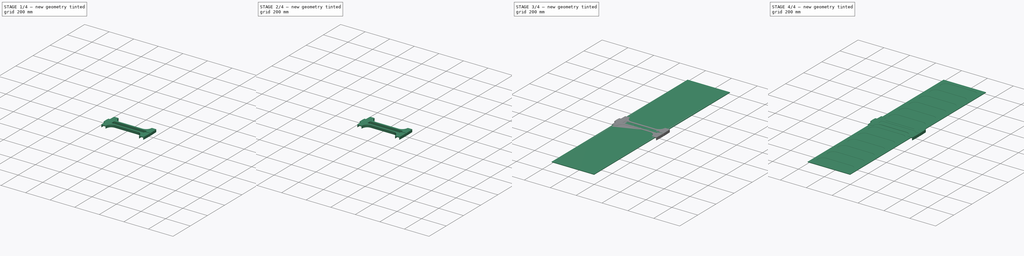
[diagram: build sequence overview — one tinted view per stage of 4, left to right]
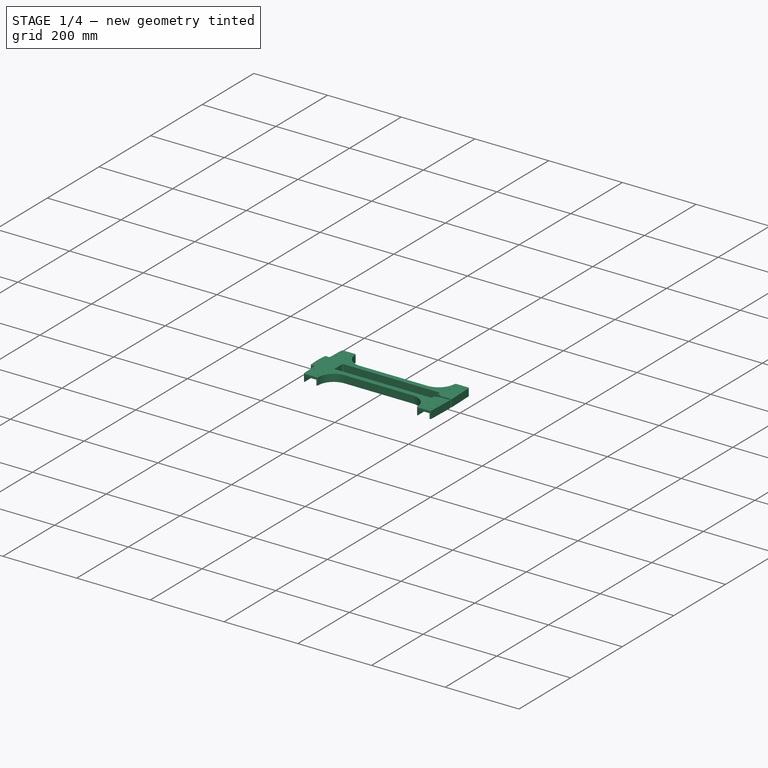
[diagram: stage 1 of 4 — iso view after this stage's code; geometry added in this stage tinted green]
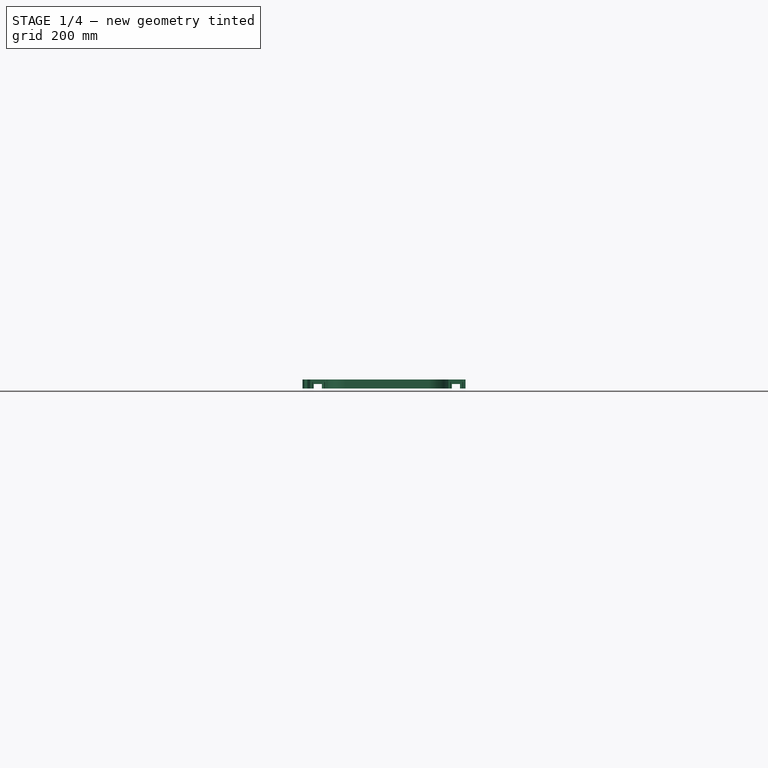
[diagram: stage 1 of 4 — front view after this stage's code; geometry added in this stage tinted green]
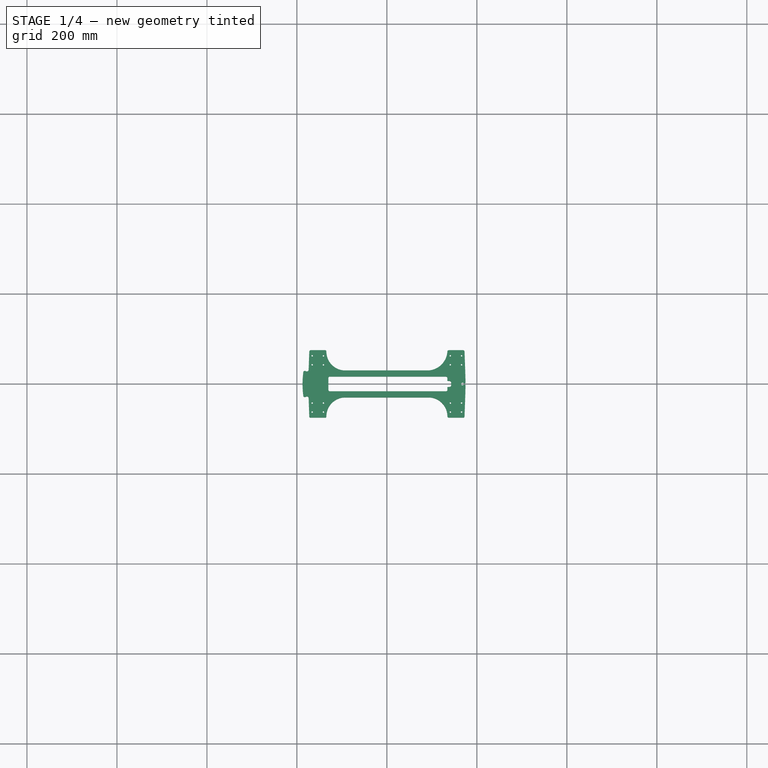
[diagram: stage 1 of 4 — top view after this stage's code; geometry added in this stage tinted green]
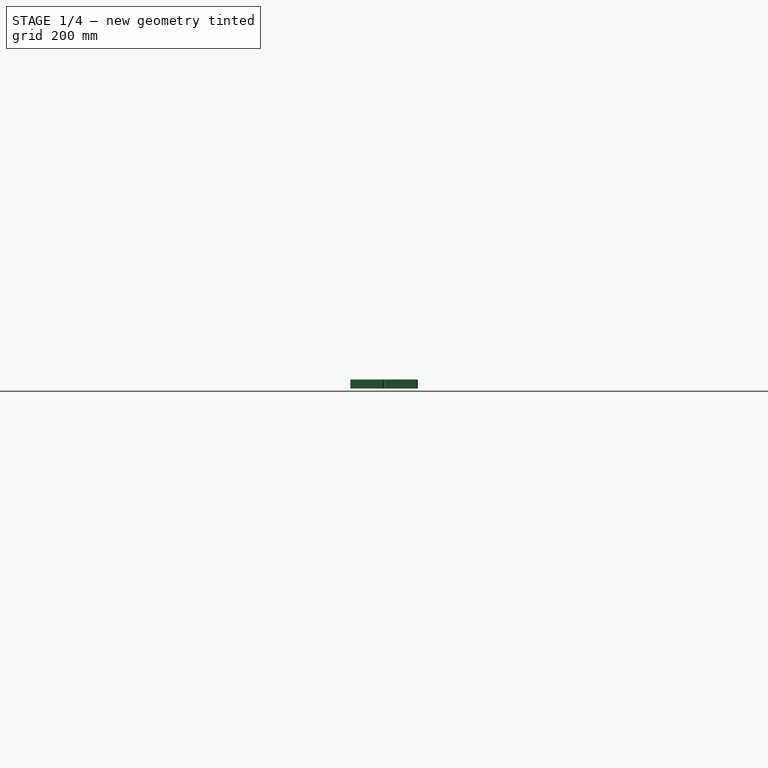
[diagram: stage 1 of 4 — right view after this stage's code; geometry added in this stage tinted green]
FCSTD DOCUMENT  (FreeCAD 1.0R39109 (Git))
Label: ZoneJeu
License: All rights reserved
LicenseURL: http://en.wikipedia.org/wiki/All_rights_reserved
objects: Sketcher::SketchObject×11, App::Link×7, PartDesign::Body×6, PartDesign::Pocket×6, App::Part×5, PartDesign::Pad×5, PartDesign::CoordinateSystem×4, PartDesign::Fillet×2, PartDesign::FeatureBase×1
note: 73 computed .brp shape members not serialized (recipe doc carries the construction recipe); baked Part::Feature solids carry a one-line shape summary decoded from their .brp
EXTERNAL_REF file=TWE_04-15.FCStd obj=_025_05_01_23_16_42_0833
EXTERNAL_REF file=TS-04.FCStd obj=_025_05_01_23_49_01_0390
EXTERNAL_REF file=../Sp3ctra_CIS_mechanics/assemblage_v2.2.0.FCStd obj=Sp3ctra

FEATURE [PartDesign::Body] Body001  label="PlaqueSupport"
  AllowCompound = false
  Group = -> [Sketch001,Pad,Sketch003,Pocket]
  Origin = -> Origin004
  Placement = pos=(0,0,-25) rot=(0,0,1;0rad)
  Tip = -> Pocket
FEATURE [App::Part] Rzils  label="Socle"
  Group = -> [LCS_Origin001,TS_04,TS_005,Body001,Body002,Body003]
  Origin = -> Origin001
FEATURE [PartDesign::CoordinateSystem] LCS_Origin003
  AttacherType = Attacher::AttachEngine3D
  AttachmentSupport = -> [X_Axis012]
  MapMode = 2
FEATURE [Sketcher::SketchObject] Sketch004
  ArcFitTolerance = 1e-06
  AttachmentSupport = -> [XY_Plane014]
  FullyConstrained = true
  MakeInternals = false
  MapMode = 5
  sketch-geometry (99):
    g0: Circle CenterX=-166 CenterY=62.5 CenterZ=0 NormalX=0 NormalY=0 NormalZ=1 AngleXU=0 Radius=1.6
    g1: Circle CenterX=-141 CenterY=62.5 CenterZ=0 NormalX=0 NormalY=0 NormalZ=1 AngleXU=0 Radius=1.6
    g2: Circle CenterX=-166 CenterY=42.5 CenterZ=0 NormalX=0 NormalY=0 NormalZ=1 AngleXU=0 Radius=1.6
    g3: Circle CenterX=-141 CenterY=42.5 CenterZ=0 NormalX=0 NormalY=0 NormalZ=1 AngleXU=0 Radius=1.6
    g4: Circle CenterX=-166 CenterY=-42.5 CenterZ=0 NormalX=0 NormalY=0 NormalZ=1 AngleXU=0 Radius=1.6
    g5: Circle CenterX=-141 CenterY=-42.5 CenterZ=0 NormalX=0 NormalY=0 NormalZ=1 AngleXU=0 Radius=1.6
    g6: Circle CenterX=-141 CenterY=-62.5 CenterZ=0 NormalX=0 NormalY=0 NormalZ=1 AngleXU=0 Radius=1.6
    g7: Circle CenterX=-166 CenterY=-62.5 CenterZ=0 NormalX=0 NormalY=0 NormalZ=1 AngleXU=0 Radius=1.6
    g8: Circle CenterX=141 CenterY=-42.5 CenterZ=0 NormalX=0 NormalY=0 NormalZ=1 AngleXU=0 Radius=1.6
    g9: Circle CenterX=141 CenterY=-62.5 CenterZ=0 NormalX=0 NormalY=0 NormalZ=1 AngleXU=0 Radius=1.6
    g10: Circle CenterX=166 CenterY=-62.5 CenterZ=0 NormalX=0 NormalY=0 NormalZ=1 AngleXU=0 Radius=1.6
    g11: Circle CenterX=166 CenterY=-42.5 CenterZ=0 NormalX=0 NormalY=0 NormalZ=1 AngleXU=0 Radius=1.6
    g12: Circle CenterX=141 CenterY=42.5 CenterZ=0 NormalX=0 NormalY=0 NormalZ=1 AngleXU=0 Radius=1.6
    g13: Circle CenterX=166 CenterY=42.5 CenterZ=0 NormalX=0 NormalY=0 NormalZ=1 AngleXU=0 Radius=1.6
    g14: Circle CenterX=141 CenterY=62.5 CenterZ=0 NormalX=0 NormalY=0 NormalZ=1 AngleXU=0 Radius=1.6
    g15: Circle CenterX=166 CenterY=62.5 CenterZ=0 NormalX=0 NormalY=0 NormalZ=1 AngleXU=0 Radius=1.6
    g16: LineSegment [constr] StartX=-166 StartY=-62.5 StartZ=0 EndX=166 EndY=-62.5 EndZ=0
    g17: LineSegment [constr] StartX=166 StartY=-62.5 StartZ=0 EndX=166 EndY=62.5 EndZ=0
    g18: LineSegment [constr] StartX=166 StartY=62.5 StartZ=0 EndX=-166 EndY=62.5 EndZ=0
    g19: LineSegment [constr] StartX=-166 StartY=62.5 StartZ=0 EndX=-166 EndY=-62.5 EndZ=0
    g20: LineSegment [constr] StartX=-141 StartY=-62.5 StartZ=0 EndX=-141 EndY=62.5 EndZ=0
    g21: LineSegment [constr] StartX=141 StartY=62.5 StartZ=0 EndX=141 EndY=-62.5 EndZ=0
    g22: LineSegment [constr] StartX=-166 StartY=-42.5 StartZ=0 EndX=166 EndY=-42.5 EndZ=0
    g23: LineSegment [constr] StartX=166 StartY=42.5 StartZ=0 EndX=-166 EndY=42.5 EndZ=0
    g24: LineSegment StartX=-130.1 StartY=13.1 StartZ=0 EndX=-130.1 EndY=-13.1 EndZ=0
    g25: LineSegment StartX=-126.9 StartY=-16.3 StartZ=0 EndX=131.3 EndY=-16.3 EndZ=0
    g26: LineSegment StartX=134.5 StartY=-13.1 StartZ=0 EndX=134.5 EndY=-7 EndZ=0
    g27: LineSegment StartX=131.3 StartY=16.3 StartZ=0 EndX=-126.9 EndY=16.3 EndZ=0
    g28: LineSegment [constr] StartX=-92.5 StartY=30 StartZ=0 EndX=-134.5 EndY=75 EndZ=0
    g29: LineSegment [constr] StartX=-134.5 StartY=-75 StartZ=0 EndX=-92.5 EndY=-30 EndZ=0
    g30: LineSegment StartX=-92.5 StartY=-30 StartZ=0 EndX=92.5 EndY=-30 EndZ=0
    g31: LineSegment [constr] StartX=92.5 StartY=-30 StartZ=0 EndX=134.5 EndY=-75 EndZ=0
    g32: LineSegment StartX=137.5 StartY=-75 StartZ=0 EndX=169.603 EndY=-75 EndZ=0
    g33: LineSegment StartX=172.601 StartY=-72.1047 StartZ=0 EndX=174.246 EndY=-25 EndZ=0
    g34: LineSegment StartX=174.246 StartY=25 StartZ=0 EndX=172.601 EndY=72.1047 EndZ=0
    g35: LineSegment StartX=169.603 StartY=75 StartZ=0 EndX=137.494 EndY=75 EndZ=0
    g36: LineSegment [constr] StartX=134.5 StartY=75 StartZ=0 EndX=92.5 EndY=30 EndZ=0
    g37: LineSegment StartX=92.5 StartY=30 StartZ=0 EndX=-92.5 EndY=30 EndZ=0
    g38: LineSegment [constr] StartX=-130.1 StartY=16.3 StartZ=0 EndX=-92.5 EndY=30 EndZ=0
    g39: LineSegment [constr] StartX=92.5 StartY=30 StartZ=0 EndX=134.5 EndY=16.3 EndZ=0
    g40: ArcOfCircle CenterX=169.603 CenterY=72 CenterZ=0 NormalX=0 NormalY=0 NormalZ=1 AngleXU=0 Radius=3 StartAngle=0.0349066 EndAngle=1.5708
    g41: GeomPoint [constr] X=172.5 Y=75 Z=0
    g42: ArcOfCircle CenterX=169.603 CenterY=-72 CenterZ=0 NormalX=0 NormalY=0 NormalZ=1 AngleXU=0 Radius=3 StartAngle=4.71239 EndAngle=6.24828
    g43: GeomPoint [constr] X=172.5 Y=-75 Z=0
    g44: ArcOfCircle CenterX=89.4871 CenterY=75 CenterZ=0 NormalX=0 NormalY=0 NormalZ=1 AngleXU=0 Radius=45.1008 StartAngle=4.77924 EndAngle=6.22078
    g45: ArcOfCircle CenterX=92.5 CenterY=-72 CenterZ=0 NormalX=0 NormalY=0 NormalZ=1 AngleXU=0 Radius=42 StartAngle=1e-16 EndAngle=1.5708
    g46: ArcOfCircle CenterX=-92.5 CenterY=-72 CenterZ=0 NormalX=0 NormalY=0 NormalZ=1 AngleXU=0 Radius=42 StartAngle=1.5708 EndAngle=3.14159
    g47: ArcOfCircle CenterX=-92.5 CenterY=72 CenterZ=0 NormalX=0 NormalY=0 NormalZ=1 AngleXU=0 Radius=42 StartAngle=3.14159 EndAngle=4.71239
    g48: ArcOfCircle CenterX=-169.502 CenterY=72 CenterZ=0 NormalX=0 NormalY=0 NormalZ=1 AngleXU=0 Radius=3 StartAngle=1.5708 EndAngle=3.10669
    g49: GeomPoint [constr] X=-172.5 Y=75 Z=0
    g50: ArcOfCircle CenterX=-137.5 CenterY=72 CenterZ=0 NormalX=0 NormalY=0 NormalZ=1 AngleXU=0 Radius=3 StartAngle=0 EndAngle=1.5708
    g51: GeomPoint [constr] X=-172.5 Y=-75 Z=0
    g52: ArcOfCircle CenterX=-137.5 CenterY=-72 CenterZ=0 NormalX=0 NormalY=0 NormalZ=1 AngleXU=0 Radius=3 StartAngle=4.71239 EndAngle=6.28319
    g53: ArcOfCircle CenterX=137.5 CenterY=-72 CenterZ=0 NormalX=0 NormalY=0 NormalZ=1 AngleXU=0 Radius=3 StartAngle=3.14159 EndAngle=4.71239
    g54: ArcOfCircle CenterX=137.494 CenterY=72 CenterZ=0 NormalX=0 NormalY=0 NormalZ=1 AngleXU=0 Radius=3 StartAngle=1.5708 EndAngle=3.07918
    g55: LineSegment [constr] StartX=-134.5 StartY=75 StartZ=0 EndX=-134.5 EndY=-75 EndZ=0
    g56: LineSegment [constr] StartX=134.5 StartY=-75 StartZ=0 EndX=134.5 EndY=75 EndZ=0
    g57: LineSegment StartX=-137.5 StartY=-75 StartZ=0 EndX=-169.502 EndY=-75 EndZ=0
    g58: LineSegment StartX=-172.5 StartY=-72.1047 StartZ=0 EndX=-173.905 EndY=-31.857 EndZ=0
    g59: LineSegment StartX=-181.79 StartY=-29 StartZ=0 EndX=-182.79 EndY=-29 EndZ=0
    g60: LineSegment [constr] StartX=-182.79 StartY=-29 StartZ=0 EndX=-182.79 EndY=29 EndZ=0
    g61: LineSegment StartX=-182.79 StartY=29 StartZ=0 EndX=-181.79 EndY=29 EndZ=0
    g62: LineSegment StartX=-173.905 StartY=31.857 StartZ=0 EndX=-172.5 EndY=72.1047 EndZ=0
    g63: LineSegment StartX=-169.502 StartY=75 StartZ=0 EndX=-137.5 EndY=75 EndZ=0
    g64: ArcOfCircle CenterX=-178 CenterY=32 CenterZ=0 NormalX=0 NormalY=0 NormalZ=1 AngleXU=0 Radius=4.09702 StartAngle=4.14895 EndAngle=6.24828
    g65: ArcOfCircle CenterX=-178 CenterY=-32 CenterZ=0 NormalX=0 NormalY=0 NormalZ=1 AngleXU=0 Radius=4.09702 StartAngle=0.0349066 EndAngle=2.13423
    g66: ArcOfCircle CenterX=12.4863 CenterY=-1.59e-14 CenterZ=0 NormalX=0 NormalY=0 NormalZ=1 AngleXU=0 Radius=200 StartAngle=3.00923 EndAngle=3.27396
    g67: ArcOfCircle CenterX=-181.79 CenterY=26 CenterZ=0 NormalX=0 NormalY=0 NormalZ=1 AngleXU=0 Radius=3 StartAngle=1.00736 EndAngle=1.5708
    g68: ArcOfCircle CenterX=-181.79 CenterY=-26 CenterZ=0 NormalX=0 NormalY=0 NormalZ=1 AngleXU=0 Radius=3 StartAngle=4.71239 EndAngle=5.27582
    g69: ArcOfCircle CenterX=-182.79 CenterY=26 CenterZ=0 NormalX=0 NormalY=0 NormalZ=1 AngleXU=0 Radius=3 StartAngle=1.5708 EndAngle=3.00923
    g70: ArcOfCircle CenterX=-182.79 CenterY=-26 CenterZ=0 NormalX=0 NormalY=0 NormalZ=1 AngleXU=0 Radius=3 StartAngle=3.27396 EndAngle=4.71239
    g71: GeomPoint [constr] X=-172.399 Y=75 Z=0
    g72: ArcOfCircle CenterX=-169.502 CenterY=-72 CenterZ=0 NormalX=0 NormalY=0 NormalZ=1 AngleXU=0 Radius=3 StartAngle=3.1765 EndAngle=4.71239
    g73: GeomPoint [constr] X=-172.399 Y=-75 Z=0
    g74: ArcOfCircle CenterX=-541.66 CenterY=-5.01e-14 CenterZ=0 NormalX=0 NormalY=0 NormalZ=1 AngleXU=0 Radius=716.343 StartAngle=6.24828 EndAngle=6.2792
    g75: ArcOfCircle CenterX=168 CenterY=0 CenterZ=0 NormalX=0 NormalY=0 NormalZ=1 AngleXU=0 Radius=3 StartAngle=0.429775 EndAngle=2.30052
    g76: LineSegment StartX=134.5 StartY=-7 StartZ=0 EndX=140.078 EndY=-6.33592 EndZ=0
    g77: LineSegment StartX=142.9 StartY=-3.15836 StartZ=0 EndX=142.9 EndY=3.15836 EndZ=0
    g78: LineSegment StartX=140.078 StartY=6.33592 StartZ=0 EndX=134.5 EndY=7 EndZ=0
    g79: LineSegment StartX=134.5 StartY=7 StartZ=0 EndX=134.5 EndY=13.1 EndZ=0
    g80: LineSegment StartX=170.727 StartY=1.25 StartZ=0 EndX=173.077 EndY=1.25 EndZ=0
    g81: LineSegment StartX=170.727 StartY=-1.25 StartZ=0 EndX=173.077 EndY=-1.25 EndZ=0
    g82: ArcOfCircle CenterX=168 CenterY=0 CenterZ=0 NormalX=0 NormalY=0 NormalZ=1 AngleXU=0 Radius=3 StartAngle=3.98266 EndAngle=5.85341
    g83: ArcOfCircle CenterX=-541.66 CenterY=-5.01e-14 CenterZ=0 NormalX=0 NormalY=0 NormalZ=1 AngleXU=0 Radius=716.343 StartAngle=0.00398746 EndAngle=0.0349066
    g84: ArcOfCircle CenterX=168 CenterY=3.6e-15 CenterZ=0 NormalX=0 NormalY=0 NormalZ=1 AngleXU=0 Radius=3 StartAngle=2.30052 EndAngle=3.98266
    g85: ArcOfCircle CenterX=173.077 CenterY=2.85 CenterZ=0 NormalX=0 NormalY=0 NormalZ=1 AngleXU=0 Radius=1.6 StartAngle=4.71239 EndAngle=6.28717
    g86: ArcOfCircle CenterX=173.077 CenterY=-2.85 CenterZ=0 NormalX=0 NormalY=0 NormalZ=1 AngleXU=0 Radius=1.6 StartAngle=6.2792 EndAngle=7.85398
    g87: ArcOfCircle CenterX=-126.9 CenterY=13.1 CenterZ=0 NormalX=0 NormalY=0 NormalZ=1 AngleXU=0 Radius=3.2 StartAngle=1.5708 EndAngle=3.14159
    g88: GeomPoint [constr] X=-130.1 Y=16.3 Z=0
    g89: ArcOfCircle CenterX=-126.9 CenterY=-13.1 CenterZ=0 NormalX=0 NormalY=0 NormalZ=1 AngleXU=0 Radius=3.2 StartAngle=3.14159 EndAngle=4.71239
    g90: GeomPoint [constr] X=-130.1 Y=-16.3 Z=0
    g91: ArcOfCircle CenterX=131.3 CenterY=-13.1 CenterZ=0 NormalX=0 NormalY=0 NormalZ=1 AngleXU=0 Radius=3.2 StartAngle=4.71239 EndAngle=6.28319
    g92: GeomPoint [constr] X=134.5 Y=-16.3 Z=0
    g93: ArcOfCircle CenterX=131.3 CenterY=13.1 CenterZ=0 NormalX=0 NormalY=0 NormalZ=1 AngleXU=0 Radius=3.2 StartAngle=1.9e-15 EndAngle=1.5708
    g94: GeomPoint [constr] X=134.5 Y=16.3 Z=0
    g95: ArcOfCircle CenterX=139.7 CenterY=3.15836 CenterZ=0 NormalX=0 NormalY=0 NormalZ=1 AngleXU=0 Radius=3.2 StartAngle=0 EndAngle=1.45231
    g96: GeomPoint [constr] X=142.9 Y=6 Z=0
    g97: ArcOfCircle CenterX=139.7 CenterY=-3.15836 CenterZ=0 NormalX=0 NormalY=0 NormalZ=1 AngleXU=0 Radius=3.2 StartAngle=4.83088 EndAngle=6.28319
    g98: GeomPoint [constr] X=142.9 Y=-6 Z=0
  constraints (232):
    c: Equal(g0, g1-g15) x15
    c: Diameter(g0) = 3.2
    c: Coincident(g16,g7)
    c: Coincident(g16,g10)
    c: Horizontal(g16)
    c: Coincident(g17,g10)
    c: Coincident(g17,g15)
    c: Vertical(g17)
    c: Coincident(g18,g15)
    c: Coincident(g18,g0)
    c: Horizontal(g18)
    c: Coincident(g19,g0)
    c: Coincident(g19,g7)
    c: Vertical(g19)
    c: Coincident(g20,g6)
    c: Coincident(g20,g1)
    c: Vertical(g20)
    c: Coincident(g21,g14)
    c: Coincident(g21,g9)
    c: Vertical(g21)
    c: PointOnObject(g8,g21)
    c: PointOnObject(g11,g17)
    c: PointOnObject(g13,g17)
    c: PointOnObject(g3,g20)
    c: PointOnObject(g2,g19)
    c: PointOnObject(g4,g19)
    c: PointOnObject(g5,g20)
    c: Coincident(g22,g4)
    c: Coincident(g22,g11)
    c: Horizontal(g22)
    c: Coincident(g23,g13)
    c: Coincident(g23,g2)
    c: Horizontal(g23)
    c: PointOnObject(g3,g23)
    c: PointOnObject(g5,g22)
    c: PointOnObject(g8,g22)
    c: PointOnObject(g12,g23)
    c: DistanceY(g2,g0) = 20
    c: DistanceY(g7,g4) = 20
    c: DistanceX(g0,g1) = 25
    c: PointOnObject(g14,g18)
    c: DistanceX(g14,g15) = 25
    c: PointOnObject(g9,g16)
    c: PointOnObject(g6,g16)
    c: Symmetric(g14,g1,g-2)
    c: Symmetric(g12,g8,g-1)
    c: DistanceX(g1,g14) = 282
    c: DistanceY(g10,g15) = 125
    c: Vertical(g24)
    c: Horizontal(g25)
    c: Horizontal(g27)
    c: Symmetric(g92,g94,g-1)
    c: DistanceY(g90,g88) = 32.6
    c: DistanceX(g88,g94) = 264.6
    c: DistanceX(g-1,g94) = 134.5
    c: Coincident(g29,g30)
    c: Horizontal(g30)
    c: Coincident(g30,g31)
    c: Horizontal(g32)
    c: Horizontal(g35)
    c: Coincident(g36,g37)
    c: Coincident(g37,g28)
    c: Horizontal(g37)
    c: Vertical(g36,g30)
    c: Vertical(g41,g43)
    c: Symmetric(g28,g29,g-1)
    c: Symmetric(g51,g49,g-1)
    c: Symmetric(g34,g33,g-1)
    c: Coincident(g38,g88)
    c: Coincident(g38,g28)
    c: Coincident(g39,g36)
    c: Coincident(g39,g94)
    c: DistanceY(g29,g28) = 60
    c: DistanceY(g51,g49) = 150
    c: Distance(g28,g49) = 38
    c: Distance(g49,g-2) = 172.5
    c: Distance(g41,g36) = 38
    c: PointOnObject(g41,g35)
    c: PointOnObject(g41,g34)
    c: Tangent(g35,g40) = -1.5708
    c: Tangent(g34,g40) = -1.5708
    c: PointOnObject(g43,g32)
    c: PointOnObject(g43,g33)
    c: Tangent(g32,g42) = -1.5708
    c: Tangent(g33,g42) = -1.5708
    c: Equal(g42,g40)
    c: Radius(g40) = 3
    c: Angle(g35,g34) = 1.6057
    c: Coincident(g44,g36)
    c: Coincident(g46,g29)
    c: Coincident(g47,g28)
    c: Tangent(g45,g30) = 1.5708
    c: Perpendicular(g44,g35)
    c: Tangent(g47,g50) = 1.5708
    c: Tangent(g46,g52) = 1.5708
    c: Tangent(g32,g53) = -1.5708
    c: Tangent(g45,g53) = 1.5708
    c: Tangent(g35,g54) = -1.5708
    c: Tangent(g44,g54) = 1.5708
    c: Equal(g40,g54)
    c: Equal(g54,g53)
    c: Equal(g42,g52)
    c: Equal(g48,g50)
    c: Horizontal(g50,g28)
    c: Vertical(g47,g28)
    c: Vertical(g29,g46)
    c: Horizontal(g52,g29)
    c: Coincident(g55,g28)
    c: Coincident(g55,g29)
    c: Vertical(g44,g36)
    c: Horizontal(g36,g35)
    c: Horizontal(g31,g32)
    c: Coincident(g56,g31)
    c: Coincident(g56,g36)
    c: Vertical(g56)
    c: Horizontal(g28,g36)
    c: Distance(g36,g-2) = 134.5
    c: Horizontal(g31,g29)
    c: Vertical(g45,g31)
    c: Horizontal(g57)
    c: Horizontal(g59)
    c: Horizontal(g63)
    c: Horizontal(g61)
    c: Tangent(g61,g67) = 1.5708
    c: Tangent(g59,g68) = 1.5708
    c: Equal(g67,g68)
    c: Radius(g68) = 3
    c: Tangent(g65,g58) = -1.5708
    c: Radius(g66) = 200
    c: Tangent(g61,g69) = 1.5708
    c: Tangent(g66,g69) = -1.5708
    c: Tangent(g66,g70) = -1.5708
    c: Tangent(g59,g70) = 1.5708
    c: Equal(g70,g69)
    c: Radius(g69) = 3
    c: Coincident(g60,g59)
    c: Coincident(g60,g61)
    c: Tangent(g67,g64) = 1.5708
    c: Tangent(g65,g68) = 1.5708
    c: Distance(g61,g61) = 1
    c: PointOnObject(g71,g63)
    c: PointOnObject(g71,g62)
    c: PointOnObject(g73,g57)
    c: PointOnObject(g73,g58)
    c: Tangent(g57,g72) = 1.5708
    c: Tangent(g58,g72) = 1.5708
    c: Angle(g63,g62) = -1.6057
    c: Tangent(g64,g62) = -1.5708
    c: Vertical(g48,g49)
    c: Tangent(g62,g48) = 1.5708
    c: Horizontal(g49,g48)
    c: Symmetric(g64,g65,g-1)
    c: Equal(g65,g64)
    c: Tangent(g52,g57) = 1.5708
    c: Symmetric(g28,g29,g-1)
    c: Horizontal(g46,g52)
    c: Tangent(g63,g50) = 1.5708
    c: Tangent(g48,g63) = 1.5708
    c: Equal(g72,g52)
    c: Vertical(g48,g58)
    c: DistanceY(g65,g64) = 64
    c: DistanceX(g65,g4) = 12
    c: Equal(g59,g61)
    c: Vertical(g58,g62)
    c: DistanceY(g70,g69) = 52
    c: Vertical(g60)
    c: Horizontal(g47,g50)
    c: Horizontal(g45,g53)
    c: DistanceY(g33,g34) = 50
    c: PointOnObject(g75,g-1)
    c: Diameter(g75) = 6
    c: DistanceX(g-1,g75) = 168
    c: PointOnObject(g78,g79)
    c: Coincident(g26,g76)
    c: PointOnObject(g79,g78)
    c: Symmetric(g98,g96,g-1)
    c: Symmetric(g78,g26,g-1)
    c: DistanceY(g98,g96) = 12
    c: DistanceX(g26,g98) = 8.4
    c: DistanceY(g26,g78) = 14
    c: Vertical(g26)
    c: Horizontal(g80)
    c: Horizontal(g81)
    c: PointOnObject(g75,g17)
    c: PointOnObject(g82,g17)
    c: Coincident(g75,g82)
    c: Coincident(g80,g75)
    c: Coincident(g81,g82)
    c: Coincident(g74,g83)
    c: Symmetric(g81,g75,g-1)
    c: Tangent(g74,g33) = -1.5708
    c: Tangent(g83,g34) = -1.5708
    c: Coincident(g84,g75)
    c: Tangent(g84,g82) = -1.5708
    c: Tangent(g80,g85) = -1.5708
    c: Tangent(g83,g85) = -1.5708
    c: Tangent(g81,g86) = 1.5708
    c: Tangent(g74,g86) = -1.5708
    c: Equal(g0,g85)
    c: Equal(g85,g86)
    c: Distance(g80,g81) = 2.5
    c: Tangent(g46,g30)
    c: PointOnObject(g88,g24)
    c: PointOnObject(g88,g27)
    c: Tangent(g24,g87) = -1.5708
    c: Tangent(g27,g87) = -1.5708
    c: PointOnObject(g90,g25)
    c: PointOnObject(g90,g24)
    c: Tangent(g25,g89) = -1.5708
    c: Tangent(g24,g89) = -1.5708
    c: PointOnObject(g92,g26)
    c: PointOnObject(g92,g25)
    c: Tangent(g26,g91) = -1.5708
    c: Tangent(g25,g91) = -1.5708
    c: PointOnObject(g94,g27)
    c: PointOnObject(g94,g79)
    c: Tangent(g27,g93) = -1.5708
    c: Tangent(g79,g93) = -1.5708
    c: Radius(g93) = 3.2
    c: Equal(g93,g91)
    c: Equal(g91,g89)
    c: Equal(g89,g87)
    c: PointOnObject(g96,g78)
    c: PointOnObject(g96,g77)
    c: Tangent(g78,g95) = -1.5708
    c: Tangent(g77,g95) = -1.5708
    c: PointOnObject(g98,g76)
    c: PointOnObject(g98,g77)
    c: Tangent(g76,g97) = -1.5708
    c: Tangent(g77,g97) = -1.5708
    c: Equal(g95,g97)
    c: Radius(g95) = 3.2
FEATURE [PartDesign::Pad] Pad003
  Direction = (0,0,1)
  Length = 5
  Length2 = 15
  Midplane = true
  Profile = -> Sketch004
  ReferenceAxis = -> Sketch004 [N_Axis]
  Refine = true
  Suppressed = false
  Type = 4
FEATURE [Sketcher::SketchObject] Sketch005
  ArcFitTolerance = 1e-06
  AttachmentOffset = pos=(0,0,-0.9) rot=(0,0,1;0rad)
  AttachmentSupport = -> [XY_Plane014]
  FullyConstrained = true
  MakeInternals = false
  MapMode = 5
  Placement = pos=(0,0,-0.9) rot=(0,0,1;0rad)
  sketch-geometry (24):
    g0: LineSegment StartX=-169.6 StartY=75.1 StartZ=0 EndX=-169.6 EndY=29.9 EndZ=0
    g1: LineSegment StartX=-164.6 StartY=29.9 StartZ=0 EndX=-142.4 EndY=29.9 EndZ=0
    g2: LineSegment StartX=-137.4 StartY=29.9 StartZ=0 EndX=-137.4 EndY=75.1 EndZ=0
    g3: LineSegment StartX=-137.4 StartY=75.1 StartZ=0 EndX=-169.6 EndY=75.1 EndZ=0
    g4: LineSegment StartX=137.4 StartY=75.1 StartZ=0 EndX=137.4 EndY=29.9 EndZ=0
    g5: LineSegment StartX=142.4 StartY=29.9 StartZ=0 EndX=164.6 EndY=29.9 EndZ=0
    g6: LineSegment StartX=169.6 StartY=29.9 StartZ=0 EndX=169.6 EndY=75.1 EndZ=0
    g7: LineSegment StartX=169.6 StartY=75.1 StartZ=0 EndX=137.4 EndY=75.1 EndZ=0
    g8: LineSegment StartX=137.4 StartY=-75.1 StartZ=0 EndX=169.6 EndY=-75.1 EndZ=0
    g9: LineSegment StartX=169.6 StartY=-75.1 StartZ=0 EndX=169.6 EndY=-29.9 EndZ=0
    g10: LineSegment StartX=164.6 StartY=-29.9 StartZ=0 EndX=142.4 EndY=-29.9 EndZ=0
    g11: LineSegment StartX=137.4 StartY=-29.9 StartZ=0 EndX=137.4 EndY=-75.1 EndZ=0
    g12: LineSegment StartX=-169.6 StartY=-75.1 StartZ=0 EndX=-137.4 EndY=-75.1 EndZ=0
    g13: LineSegment StartX=-137.4 StartY=-75.1 StartZ=0 EndX=-137.4 EndY=-29.9 EndZ=0
    g14: LineSegment StartX=-142.4 StartY=-29.9 StartZ=0 EndX=-164.6 EndY=-29.9 EndZ=0
    g15: LineSegment StartX=-169.6 StartY=-29.9 StartZ=0 EndX=-169.6 EndY=-75.1 EndZ=0
    g16: ArcOfCircle CenterX=-167.1 CenterY=29.9 CenterZ=0 NormalX=0 NormalY=0 NormalZ=1 AngleXU=0 Radius=2.5 StartAngle=3.14159 EndAngle=6.28319
    g17: ArcOfCircle CenterX=-139.9 CenterY=29.9 CenterZ=0 NormalX=0 NormalY=0 NormalZ=1 AngleXU=0 Radius=2.5 StartAngle=3.14159 EndAngle=6.28319
    g18: ArcOfCircle CenterX=-167.1 CenterY=-29.9 CenterZ=0 NormalX=0 NormalY=0 NormalZ=1 AngleXU=0 Radius=2.5 StartAngle=-9e-16 EndAngle=3.14159
    g19: ArcOfCircle CenterX=-139.9 CenterY=-29.9 CenterZ=0 NormalX=0 NormalY=0 NormalZ=1 AngleXU=0 Radius=2.5 StartAngle=-9e-16 EndAngle=3.14159
    g20: ArcOfCircle CenterX=139.9 CenterY=-29.9 CenterZ=0 NormalX=0 NormalY=0 NormalZ=1 AngleXU=0 Radius=2.5 StartAngle=9e-16 EndAngle=3.14159
    g21: ArcOfCircle CenterX=167.1 CenterY=-29.9 CenterZ=0 NormalX=0 NormalY=0 NormalZ=1 AngleXU=0 Radius=2.5 StartAngle=-3.6e-15 EndAngle=3.14159
    g22: ArcOfCircle CenterX=167.1 CenterY=29.9 CenterZ=0 NormalX=0 NormalY=0 NormalZ=1 AngleXU=0 Radius=2.5 StartAngle=3.14159 EndAngle=6.28319
    g23: ArcOfCircle CenterX=139.9 CenterY=29.9 CenterZ=0 NormalX=0 NormalY=0 NormalZ=1 AngleXU=0 Radius=2.5 StartAngle=3.14159 EndAngle=6.28319
  constraints (77):
    c: Coincident(g2,g3)
    c: Coincident(g3,g0)
    c: Vertical(g0)
    c: Vertical(g2)
    c: Horizontal(g1)
    c: Horizontal(g3)
    c: Coincident(g6,g7)
    c: Coincident(g7,g4)
    c: Vertical(g4)
    c: Vertical(g6)
    c: Horizontal(g5)
    c: Horizontal(g7)
    c: Coincident(g8,g9)
    c: Coincident(g11,g8)
    c: Horizontal(g8)
    c: Horizontal(g10)
    c: Vertical(g9)
    c: Vertical(g11)
    c: Coincident(g12,g13)
    c: Coincident(g15,g12)
    c: Horizontal(g12)
    c: Horizontal(g14)
    c: Vertical(g13)
    c: Vertical(g15)
    c: Symmetric(g12,g0,g-1)
    c: DistanceY(g12,g0) = 150.2
    c: Symmetric(g4,g2,g-2)
    c: Symmetric(g6,g8,g-1)
    c: DistanceY(g6,g6) = 45.2
    c: Equal(g7,g3)
    c: Distance(g7,g7) = 32.2
    c: DistanceX(g2,g4) = 274.8
    c: Equal(g9,g6)
    c: PointOnObject(g16,g1)
    c: Coincident(g16,g0)
    c: PointOnObject(g17,g1)
    c: Coincident(g17,g2)
    c: PointOnObject(g18,g14)
    c: Coincident(g18,g15)
    c: PointOnObject(g19,g14)
    c: Coincident(g19,g13)
    c: PointOnObject(g20,g10)
    c: Coincident(g20,g11)
    c: PointOnObject(g21,g10)
    c: Coincident(g21,g9)
    c: PointOnObject(g22,g5)
    c: Coincident(g22,g6)
    c: PointOnObject(g23,g5)
    c: Coincident(g23,g4)
    c: Equal(g16,g17)
    c: Equal(g16,g18)
    c: Equal(g16,g19)
    c: Equal(g16,g23)
    c: Equal(g16,g22)
    c: Equal(g16,g20)
    c: Equal(g16,g21)
    c: Radius(g16) = 2.5
    c: Coincident(g1,g16)
    c: Coincident(g1,g17)
    c: Coincident(g14,g18)
    c: Coincident(g14,g19)
    c: Coincident(g10,g21)
    c: Coincident(g10,g20)
    c: Coincident(g5,g23)
    c: Coincident(g5,g22)
    c: Horizontal(g0,g1)
    c: Horizontal(g1,g2)
    c: Horizontal(g15,g14)
    c: Horizontal(g14,g13)
    c: Horizontal(g4,g5)
    c: Horizontal(g5,g6)
    c: Horizontal(g11,g10)
    c: Horizontal(g10,g9)
    c: Vertical(g2,g13)
    c: Horizontal(g13,g11)
    c: Vertical(g11,g4)
    c: Horizontal(g2,g4)
FEATURE [PartDesign::Pocket] Pocket001
  BaseFeature = -> Pad003
  Direction = (0,0,-1)
  Length = 2
  Length2 = 18
  Offset = 4
  Profile = -> Sketch005
  ReferenceAxis = -> Sketch005 [N_Axis]
  Refine = true
  Suppressed = false
  Type = 1
FEATURE [Sketcher::SketchObject] Sketch006
  ArcFitTolerance = 1e-06
  AttachmentOffset = pos=(0,0,-5) rot=(0,0,1;0rad)
  AttachmentSupport = -> [XY_Plane014]
  FullyConstrained = true
  MakeInternals = false
  MapMode = 5
  Placement = pos=(0,0,-5) rot=(0,0,1;0rad)
  sketch-geometry (8):
    g0: LineSegment StartX=-162.5 StartY=32 StartZ=0 EndX=-162.5 EndY=-32 EndZ=0
    g1: LineSegment StartX=-162.5 StartY=-32 StartZ=0 EndX=-144.5 EndY=-32 EndZ=0
    g2: LineSegment StartX=-144.5 StartY=-32 StartZ=0 EndX=-144.5 EndY=32 EndZ=0
    g3: LineSegment StartX=-144.5 StartY=32 StartZ=0 EndX=-162.5 EndY=32 EndZ=0
    g4: LineSegment StartX=144.5 StartY=32 StartZ=0 EndX=144.5 EndY=-32 EndZ=0
    g5: LineSegment StartX=144.5 StartY=-32 StartZ=0 EndX=162.5 EndY=-32 EndZ=0
    g6: LineSegment StartX=162.5 StartY=-32 StartZ=0 EndX=162.5 EndY=32 EndZ=0
    g7: LineSegment StartX=162.5 StartY=32 StartZ=0 EndX=144.5 EndY=32 EndZ=0
  constraints (22):
    c: Coincident(g0,g1)
    c: Coincident(g1,g2)
    c: Coincident(g2,g3)
    c: Coincident(g3,g0)
    c: Vertical(g0)
    c: Horizontal(g1)
    c: Horizontal(g3)
    c: Coincident(g4,g5)
    c: Coincident(g5,g6)
    c: Coincident(g6,g7)
    c: Coincident(g7,g4)
    c: Vertical(g4)
    c: Vertical(g6)
    c: Horizontal(g5)
    c: Horizontal(g7)
    c: Horizontal(g1,g4)
    c: Symmetric(g2,g4,g-2)
    c: Symmetric(g2,g1,g-1)
    c: DistanceY(g0,g0) = 64
    c: DistanceX(g3,g3) = 18
    c: Equal(g7,g3)
    c: DistanceX(g2,g4) = 289
FEATURE [PartDesign::Pocket] Pocket002
  BaseFeature = -> Pocket001
  Direction = (0,0,-1)
  Length = 5
  Length2 = 5
  Profile = -> Sketch006
  ReferenceAxis = -> Sketch006 [N_Axis]
  Refine = true
  Suppressed = false
  Type = 1
FEATURE [Sketcher::SketchObject] Sketch007
  ArcFitTolerance = 1e-06
  AttachmentSupport = -> [XY_Plane014]
  FullyConstrained = true
  MakeInternals = false
  MapMode = 5
  sketch-geometry (4):
    g0: LineSegment StartX=142 StartY=2.95 StartZ=0 EndX=142 EndY=-2.95 EndZ=0
    g1: LineSegment StartX=142 StartY=-2.95 StartZ=0 EndX=168 EndY=-2.95 EndZ=0
    g2: LineSegment StartX=168 StartY=-2.95 StartZ=0 EndX=168 EndY=2.95 EndZ=0
    g3: LineSegment StartX=168 StartY=2.95 StartZ=0 EndX=142 EndY=2.95 EndZ=0
  constraints (11):
    c: Coincident(g0,g1)
    c: Coincident(g1,g2)
    c: Coincident(g2,g3)
    c: Coincident(g3,g0)
    c: Vertical(g2)
    c: Horizontal(g1)
    c: Horizontal(g3)
    c: Distance(g0,g-2) = 142
    c: DistanceY(g2,g2) = 5.9
    c: DistanceX(g3,g3) = 26
    c: Symmetric(g0,g0,g-1)
FEATURE [PartDesign::Pocket] Pocket003
  BaseFeature = -> Pocket002
  Direction = (0,0,-1)
  Length = 0
  Length2 = 5
  Profile = -> Sketch007
  ReferenceAxis = -> Sketch007 [N_Axis]
  Refine = true
  Suppressed = false
  Type = 4
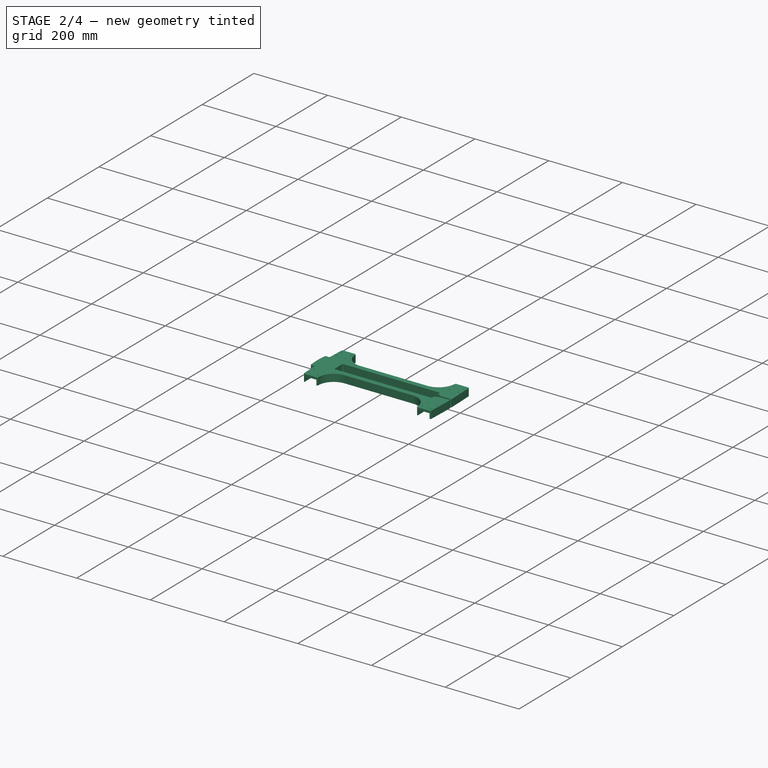
[diagram: stage 2 of 4 — iso view after this stage's code; geometry added in this stage tinted green]
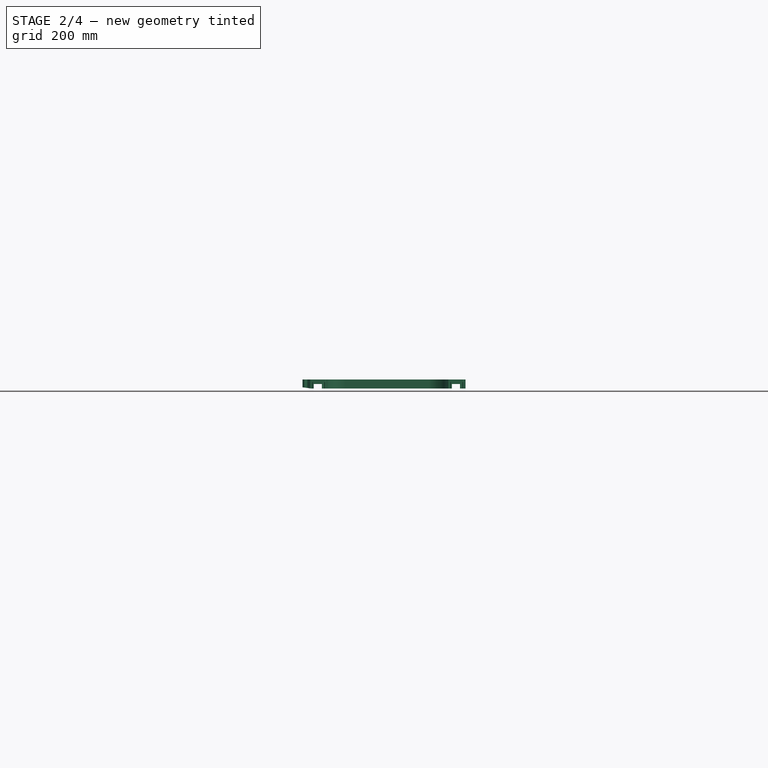
[diagram: stage 2 of 4 — front view after this stage's code; geometry added in this stage tinted green]
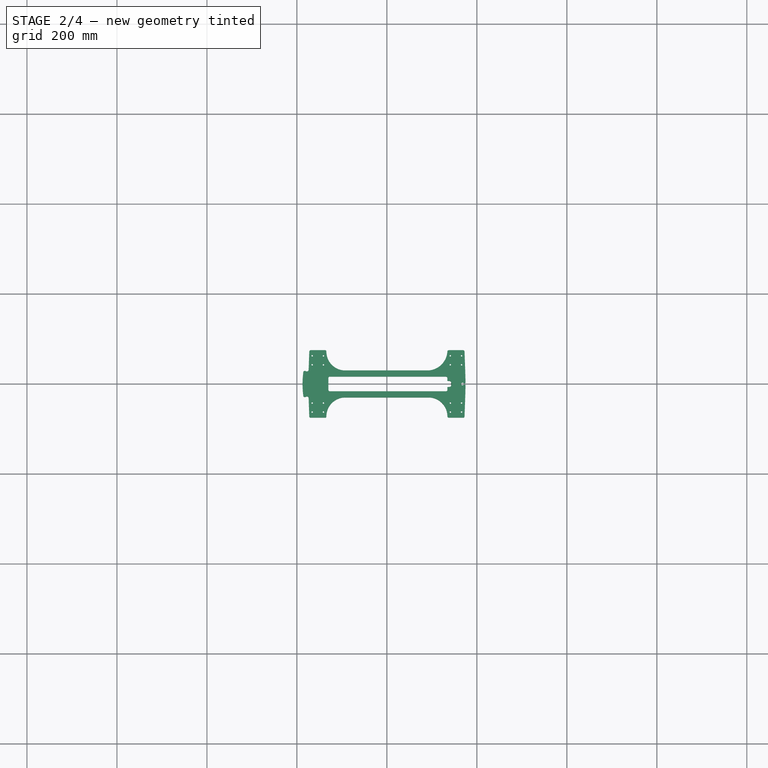
[diagram: stage 2 of 4 — top view after this stage's code; geometry added in this stage tinted green]
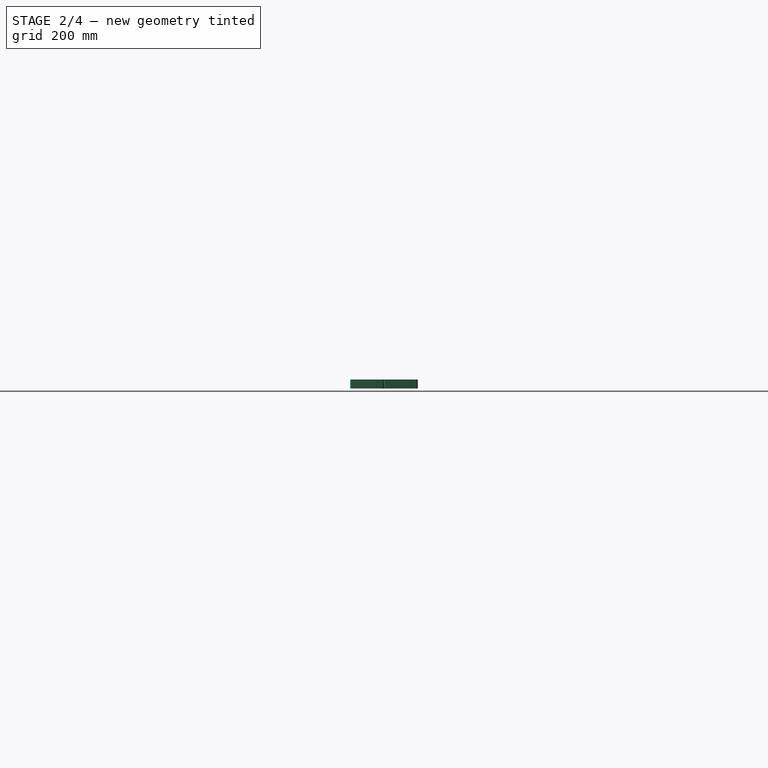
[diagram: stage 2 of 4 — right view after this stage's code; geometry added in this stage tinted green]
FEATURE [Sketcher::SketchObject] Sketch008
  ArcFitTolerance = 1e-06
  AttachmentSupport = -> [XZ_Plane014]
  FullyConstrained = false
  MakeInternals = false
  MapMode = 5
  Placement = pos=(0,0,0) rot=(1,0,0;1.5708rad)
  sketch-geometry (3):
    g0: LineSegment StartX=-164.143 StartY=-15.5618 StartZ=0 EndX=-189.139 EndY=-12.0489 EndZ=0
    g1: LineSegment StartX=-189.139 StartY=-12.0489 StartZ=0 EndX=-189.139 EndY=-15.5618 EndZ=0
    g2: LineSegment StartX=-189.139 StartY=-15.5618 StartZ=0 EndX=-164.143 EndY=-15.5618 EndZ=0
  constraints (6):
    c: Coincident(g0,g1)
    c: Vertical(g1)
    c: Coincident(g1,g2)
    c: Coincident(g2,g0)
    c: Horizontal(g2)
    c: Angle(g0,g2) = 0.139626
FEATURE [PartDesign::Pocket] Pocket004
  BaseFeature = -> Pocket003
  Direction = (0,1,-2e-16)
  Length = 100
  Length2 = 100
  Profile = -> Sketch008
  ReferenceAxis = -> Sketch008 [N_Axis]
  Refine = true
  Suppressed = false
  Type = 4
FEATURE [PartDesign::Body] Body005  label="Plexiglass"
  AllowCompound = false
  Group = -> [Sketch009,Pad004]
  Origin = -> Origin015
  Placement = pos=(0,0,5) rot=(0,0,1;0rad)
  Tip = -> Pad004
FEATURE [Sketcher::SketchObject] Sketch010
  ArcFitTolerance = 1e-06
  AttachmentSupport = -> [XY_Plane014]
  FullyConstrained = true
  MakeInternals = false
  MapMode = 5
  sketch-geometry (10):
    g0: Circle CenterX=169.5 CenterY=18 CenterZ=0 NormalX=0 NormalY=0 NormalZ=1 AngleXU=0 Radius=1.025
    g1: Circle CenterX=169.5 CenterY=10 CenterZ=0 NormalX=0 NormalY=0 NormalZ=1 AngleXU=0 Radius=1.025
    g2: Circle CenterX=169.5 CenterY=-10 CenterZ=0 NormalX=0 NormalY=0 NormalZ=1 AngleXU=0 Radius=1.025
    g3: Circle CenterX=169.5 CenterY=-18 CenterZ=0 NormalX=0 NormalY=0 NormalZ=1 AngleXU=0 Radius=1.025
    g4: LineSegment [constr] StartX=169.5 StartY=18 StartZ=0 EndX=169.5 EndY=-18 EndZ=0
    g5: Circle [constr] CenterX=169.5 CenterY=0 CenterZ=0 NormalX=0 NormalY=0 NormalZ=1 AngleXU=0 Radius=3
    g6: LineSegment [constr] StartX=165 StartY=-6 StartZ=0 EndX=165 EndY=-31 EndZ=0
    g7: LineSegment [constr] StartX=165 StartY=-31 StartZ=0 EndX=174 EndY=-31 EndZ=0
    g8: LineSegment [constr] StartX=174 StartY=-31 StartZ=0 EndX=174 EndY=-6 EndZ=0
    g9: LineSegment [constr] StartX=174 StartY=-6 StartZ=0 EndX=165 EndY=-6 EndZ=0
  constraints (27):
    c: Equal(g0,g1)
    c: Equal(g0,g2)
    c: Equal(g0,g3)
    c: Diameter(g0) = 2.05
    c: Coincident(g4,g0)
    c: Coincident(g4,g3)
    c: PointOnObject(g1,g4)
    c: PointOnObject(g2,g4)
    c: Symmetric(g1,g2,g-1)
    c: DistanceY(g1,g0) = 8
    c: DistanceY(g3,g2) = 8
    c: PointOnObject(g5,g-1)
    c: Diameter(g5) = 6
    c: DistanceY(g1) = 10
    c: Coincident(g6,g7)
    c: Coincident(g7,g8)
    c: Coincident(g8,g9)
    c: Coincident(g9,g6)
    c: Vertical(g6)
    c: Vertical(g8)
    c: Horizontal(g7)
    c: Symmetric(g6,g8,g4)
    c: DistanceX(g7,g7) = 9
    c: Distance(g2,g9) = 4
    c: DistanceY(g8,g8) = 25
    c: DistanceX(g-1,g5) = 169.5
    c: PointOnObject(g5,g4)
FEATURE [PartDesign::Fillet] Fillet
  Base = -> Pocket004 [Edge256,Edge208]
  BaseFeature = -> Pocket004
  Radius = 3
  Refine = true
  SupportTransform = false
  Suppressed = false
  UseAllEdges = false
FEATURE [PartDesign::Fillet] Fillet001
  Base = -> Fillet [Edge134,Edge137]
  BaseFeature = -> Fillet
  Radius = 3
  Refine = true
  SupportTransform = false
  Suppressed = false
  UseAllEdges = false
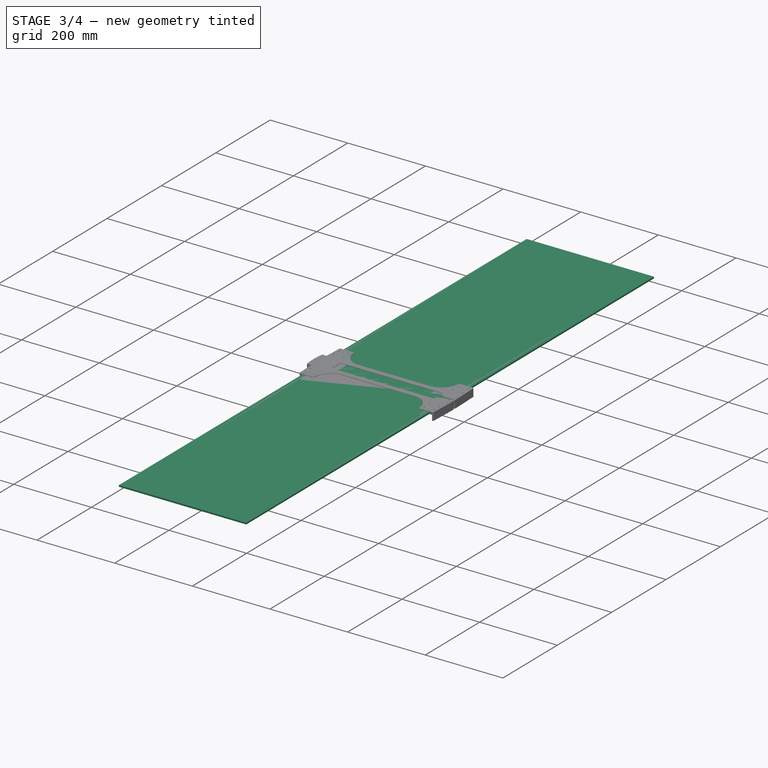
[diagram: stage 3 of 4 — iso view after this stage's code; geometry added in this stage tinted green]
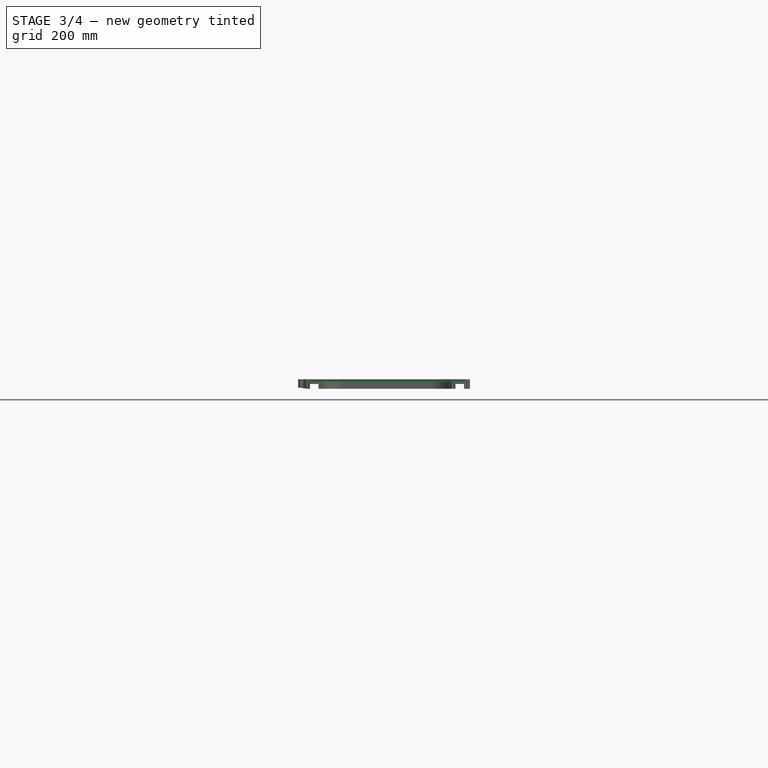
[diagram: stage 3 of 4 — front view after this stage's code; geometry added in this stage tinted green]
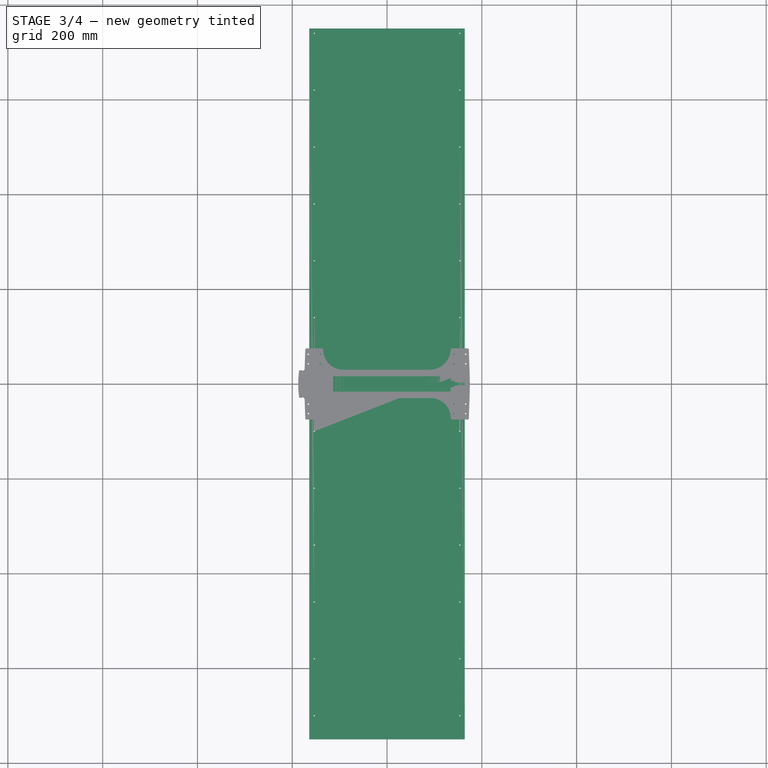
[diagram: stage 3 of 4 — top view after this stage's code; geometry added in this stage tinted green]
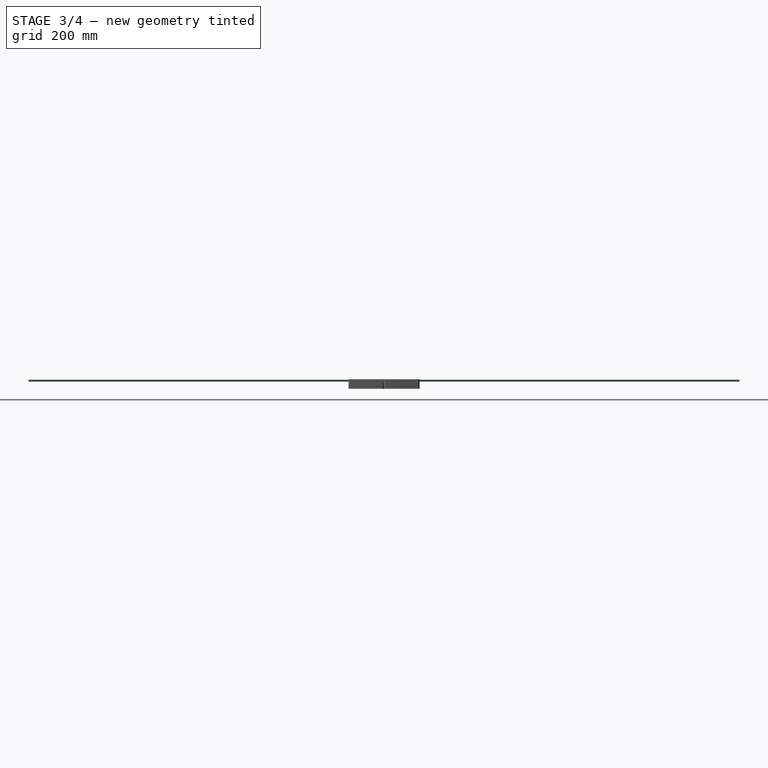
[diagram: stage 3 of 4 — right view after this stage's code; geometry added in this stage tinted green]
FEATURE [PartDesign::CoordinateSystem] LCS_Origin
  AttacherType = Attacher::AttachEngine3D
  AttachmentSupport = -> [X_Axis]
  MapMode = 2
FEATURE [App::Link] TWE_04_15  label="TWE_04-15"
  LinkPlacement = pos=(-153.5,30,-8.5) rot=(0,0,1;0rad)
  LinkedObject = -> <external TWE_04-15.FCStd>#_025_05_01_23_16_42_0833
  Placement = pos=(-153.5,30,-8.5) rot=(0,0,1;0rad)
FEATURE [App::Link] TWE_04_016  label="TWE_04-016"
  LinkPlacement = pos=(153.5,-30,-8.5) rot=(0,0,1;3.14159rad)
  LinkedObject = -> <external TWE_04-15.FCStd>#_025_05_01_23_16_42_0833
  Placement = pos=(153.5,-30,-8.5) rot=(0,0,1;3.14159rad)
FEATURE [App::Link] TWE_04_017  label="TWE_04-017"
  LinkPlacement = pos=(153.5,30,-8.5) rot=(0,0,1;0rad)
  LinkedObject = -> <external TWE_04-15.FCStd>#_025_05_01_23_16_42_0833
  Placement = pos=(153.5,30,-8.5) rot=(0,0,1;0rad)
FEATURE [App::Link] TWE_04_018  label="TWE_04-018"
  LinkPlacement = pos=(-153.5,-30,-8.5) rot=(0,0,1;3.14159rad)
  LinkedObject = -> <external TWE_04-15.FCStd>#_025_05_01_23_16_42_0833
  Placement = pos=(-153.5,-30,-8.5) rot=(0,0,1;3.14159rad)
FEATURE [App::Part] curseurs
  Group = -> [LCS_Origin,TWE_04_15,TWE_04_016,TWE_04_017,TWE_04_018]
  Origin = -> Origin
FEATURE [PartDesign::CoordinateSystem] LCS_Origin001
  AttacherType = Attacher::AttachEngine3D
  AttachmentSupport = -> [X_Axis001]
  MapMode = 2
FEATURE [App::Link] TS_04  label="TS-04"
  LinkPlacement = pos=(-153.5,1.80125e-05,-8.5) rot=(0,0,1;0rad)
  LinkedObject = -> <external TS-04.FCStd>#_025_05_01_23_49_01_0390
  Placement = pos=(-153.5,1.80125e-05,-8.5) rot=(0,0,1;0rad)
FEATURE [App::Link] TS_005  label="TS-005"
  LinkPlacement = pos=(153.5,-1.70469e-05,-8.5) rot=(0,0,1;0rad)
  LinkedObject = -> <external TS-04.FCStd>#_025_05_01_23_49_01_0390
  Placement = pos=(153.5,-1.70469e-05,-8.5) rot=(0,0,1;0rad)
FEATURE [PartDesign::CoordinateSystem] LCS_Origin002
  AttacherType = Attacher::AttachEngine3D
  AttachmentSupport = -> [X_Axis002]
  MapMode = 2
FEATURE [App::Link] Sp3ctra
  LinkPlacement = pos=(107.4,-9.09994,-6.40001) rot=(0,1,0;3.14159rad)
  LinkedObject = -> <external ../Sp3ctra_CIS_mechanics/assemblage_v2.2.0.FCStd>#Sp3ctra
  Placement = pos=(107.4,-9.09994,-6.40001) rot=(0,1,0;3.14159rad)
FEATURE [App::Part] ZoneJeu  label="TêteLecture"
  Group = -> [LCS_Origin002,curseurs,Sp3ctra]
  Origin = -> Origin002
FEATURE [Sketcher::SketchObject] Sketch
  ArcFitTolerance = 1e-06
  AttachmentSupport = -> [XY_Plane003]
  FullyConstrained = true
  MakeInternals = false
  MapMode = 5
  sketch-geometry (12):
    g0: LineSegment [constr] StartX=-115.5 StartY=9 StartZ=0 EndX=-115.5 EndY=-9 EndZ=0
    g1: LineSegment [constr] StartX=-115.5 StartY=-9 StartZ=0 EndX=115.5 EndY=-9 EndZ=0
    g2: LineSegment [constr] StartX=115.5 StartY=-9 StartZ=0 EndX=115.5 EndY=9 EndZ=0
    g3: LineSegment [constr] StartX=115.5 StartY=9 StartZ=0 EndX=-115.5 EndY=9 EndZ=0
    g4: LineSegment [constr] StartX=-151.5 StartY=750 StartZ=0 EndX=-151.5 EndY=-750 EndZ=0
    g5: LineSegment [constr] StartX=-151.5 StartY=-750 StartZ=0 EndX=151.5 EndY=-750 EndZ=0
    g6: LineSegment [constr] StartX=151.5 StartY=-750 StartZ=0 EndX=151.5 EndY=750 EndZ=0
    g7: LineSegment [constr] StartX=151.5 StartY=750 StartZ=0 EndX=-151.5 EndY=750 EndZ=0
    g8: LineSegment StartX=148.5 StartY=750 StartZ=0 EndX=-148.5 EndY=750 EndZ=0
    g9: LineSegment StartX=-148.5 StartY=750 StartZ=0 EndX=-148.5 EndY=-750 EndZ=0
    g10: LineSegment StartX=-148.5 StartY=-750 StartZ=0 EndX=148.5 EndY=-750 EndZ=0
    g11: LineSegment StartX=148.5 StartY=-750 StartZ=0 EndX=148.5 EndY=750 EndZ=0
  constraints (30):
    c: Coincident(g0,g1)
    c: Coincident(g1,g2)
    c: Coincident(g2,g3)
    c: Coincident(g3,g0)
    c: Vertical(g0)
    c: Horizontal(g1)
    c: Distance(g0,g2) = 231
    c: Distance(g1,g3) = 18
    c: Coincident(g4,g5)
    c: Coincident(g5,g6)
    c: Coincident(g6,g7)
    c: Coincident(g7,g4)
    c: Vertical(g4)
    c: Horizontal(g5)
    c: Symmetric(g6,g4,g-2)
    c: Symmetric(g5,g6,g-1)
    c: Symmetric(g0,g2,g-2)
    c: Symmetric(g2,g1,g-1)
    c: DistanceX(g5,g5) = 303
    c: Coincident(g8,g9)
    c: Coincident(g9,g10)
    c: Coincident(g10,g11)
    c: Coincident(g11,g8)
    c: Horizontal(g8)
    c: Vertical(g9)
    c: Distance(g9,g11) = 297
    c: Distance(g8,g10) = 1500
    c: Symmetric(g10,g9,g-2)
    c: Symmetric(g10,g8,g-1)
    c: DistanceY(g4,g4) = 1500
FEATURE [Sketcher::SketchObject] Sketch001
  ArcFitTolerance = 1e-06
  AttachmentSupport = -> [XY_Plane004]
  FullyConstrained = false
  MakeInternals = false
  MapMode = 5
  sketch-geometry (31):
    g0: LineSegment StartX=-164 StartY=750 StartZ=0 EndX=-164 EndY=-750 EndZ=0
    g1: LineSegment StartX=-164 StartY=-750 StartZ=0 EndX=164 EndY=-750 EndZ=0
    g2: LineSegment StartX=164 StartY=-750 StartZ=0 EndX=164 EndY=750 EndZ=0
    g3: LineSegment StartX=164 StartY=750 StartZ=0 EndX=-164 EndY=750 EndZ=0
    g4: LineSegment [constr] StartX=-153.5 StartY=-740 StartZ=0 EndX=-153.5 EndY=-700 EndZ=0
    g5: Circle CenterX=153.5 CenterY=-700 CenterZ=0 NormalX=0 NormalY=0 NormalZ=1 AngleXU=0 Radius=1.25
    g6: Circle CenterX=-153.5 CenterY=-700 CenterZ=0 NormalX=0 NormalY=0 NormalZ=1 AngleXU=0 Radius=1.25
    g7: Circle CenterX=153.5 CenterY=-580 CenterZ=0 NormalX=0 NormalY=0 NormalZ=1 AngleXU=0 Radius=1.25
    g8: Circle CenterX=-153.5 CenterY=-580 CenterZ=0 NormalX=0 NormalY=0 NormalZ=1 AngleXU=0 Radius=1.25
    g9: Circle CenterX=153.5 CenterY=-460 CenterZ=0 NormalX=0 NormalY=0 NormalZ=1 AngleXU=0 Radius=1.25
    g10: Circle CenterX=-153.5 CenterY=-460 CenterZ=0 NormalX=0 NormalY=0 NormalZ=1 AngleXU=0 Radius=1.25
    g11: Circle CenterX=153.5 CenterY=-340 CenterZ=0 NormalX=0 NormalY=0 NormalZ=1 AngleXU=0 Radius=1.25
    g12: Circle CenterX=-153.5 CenterY=-340 CenterZ=0 NormalX=0 NormalY=0 NormalZ=1 AngleXU=0 Radius=1.25
    g13: Circle CenterX=153.5 CenterY=-220 CenterZ=0 NormalX=0 NormalY=0 NormalZ=1 AngleXU=0 Radius=1.25
    g14: Circle CenterX=-153.5 CenterY=-220 CenterZ=0 NormalX=0 NormalY=0 NormalZ=1 AngleXU=0 Radius=1.25
    g15: Circle CenterX=153.5 CenterY=-100 CenterZ=0 NormalX=0 NormalY=0 NormalZ=1 AngleXU=0 Radius=1.25
    g16: Circle CenterX=-153.5 CenterY=-100 CenterZ=0 NormalX=0 NormalY=0 NormalZ=1 AngleXU=0 Radius=1.25
    g17: Circle CenterX=153.5 CenterY=20 CenterZ=0 NormalX=0 NormalY=0 NormalZ=1 AngleXU=0 Radius=1.25
    g18: Circle CenterX=-153.5 CenterY=20 CenterZ=0 NormalX=0 NormalY=0 NormalZ=1 AngleXU=0 Radius=1.25
    g19: Circle CenterX=153.5 CenterY=140 CenterZ=0 NormalX=0 NormalY=0 NormalZ=1 AngleXU=0 Radius=1.25
    g20: Circle CenterX=-153.5 CenterY=140 CenterZ=0 NormalX=0 NormalY=0 NormalZ=1 AngleXU=0 Radius=1.25
    g21: Circle CenterX=153.5 CenterY=260 CenterZ=0 NormalX=0 NormalY=0 NormalZ=1 AngleXU=0 Radius=1.25
    g22: Circle CenterX=-153.5 CenterY=260 CenterZ=0 NormalX=0 NormalY=0 NormalZ=1 AngleXU=0 Radius=1.25
    g23: Circle CenterX=153.5 CenterY=380 CenterZ=0 NormalX=0 NormalY=0 NormalZ=1 AngleXU=0 Radius=1.25
    g24: Circle CenterX=-153.5 CenterY=380 CenterZ=0 NormalX=0 NormalY=0 NormalZ=1 AngleXU=0 Radius=1.25
    g25: Circle CenterX=153.5 CenterY=500 CenterZ=0 NormalX=0 NormalY=0 NormalZ=1 AngleXU=0 Radius=1.25
    g26: Circle CenterX=-153.5 CenterY=500 CenterZ=0 NormalX=0 NormalY=0 NormalZ=1 AngleXU=0 Radius=1.25
    g27: Circle CenterX=153.5 CenterY=620 CenterZ=0 NormalX=0 NormalY=0 NormalZ=1 AngleXU=0 Radius=1.25
    g28: Circle CenterX=-153.5 CenterY=620 CenterZ=0 NormalX=0 NormalY=0 NormalZ=1 AngleXU=0 Radius=1.25
    g29: Circle CenterX=153.5 CenterY=740 CenterZ=0 NormalX=0 NormalY=0 NormalZ=1 AngleXU=0 Radius=1.25
    g30: Circle CenterX=-153.5 CenterY=740 CenterZ=0 NormalX=0 NormalY=0 NormalZ=1 AngleXU=0 Radius=1.25
  constraints (64):
    c: Coincident(g0,g1)
    c: Coincident(g1,g2)
    c: Coincident(g2,g3)
    c: Coincident(g3,g0)
    c: Vertical(g2)
    c: Horizontal(g3)
    c: Distance(g0,g2) = 328
    c: Distance(g1,g3) = 1500
    c: Symmetric(g1,g0,g-2)
    c: Symmetric(g0,g0,g-1)
    c: Distance(g4) = 40
    c: Vertical(g4)
    c: Diameter(g6) = 2.5
    c: Diameter(g8) = 2.5
    c: Diameter(g10) = 2.5
    c: Diameter(g12) = 2.5
    c: Diameter(g14) = 2.5
    c: Diameter(g16) = 2.5
    c: Diameter(g18) = 2.5
    c: Diameter(g20) = 2.5
    c: Diameter(g22) = 2.5
    c: Diameter(g24) = 2.5
    c: Diameter(g26) = 2.5
    c: Diameter(g28) = 2.5
    c: Diameter(g30) = 2.5
    c: Block(g6)
    c: Block(g8)
    c: Block(g10)
    c: Block(g12)
    c: Block(g14)
    c: Block(g16)
    c: Block(g18)
    c: Block(g20)
    c: Block(g22)
    c: Block(g24)
    c: Block(g26)
    c: Block(g28)
    c: Block(g30)
    c: Diameter(g5) = 2.5
    c: Diameter(g7) = 2.5
    c: Diameter(g9) = 2.5
    c: Diameter(g11) = 2.5
    c: Diameter(g13) = 2.5
    c: Diameter(g15) = 2.5
    c: Diameter(g17) = 2.5
    c: Diameter(g19) = 2.5
    c: Diameter(g21) = 2.5
    c: Diameter(g23) = 2.5
    c: Diameter(g25) = 2.5
    c: Diameter(g27) = 2.5
    c: Diameter(g29) = 2.5
    c: Block(g5)
    c: Block(g7)
    c: Block(g9)
    c: Block(g11)
    c: Block(g13)
    c: Block(g15)
    c: Block(g17)
    c: Block(g19)
    c: Block(g21)
    c: Block(g23)
    c: Block(g25)
    c: Block(g27)
    c: Block(g29)
FEATURE [PartDesign::Pad] Pad
  Direction = (0,0,1)
  Length = 4
  Length2 = 10
  Profile = -> Sketch001
  ReferenceAxis = -> Sketch001 [N_Axis]
  Refine = true
  Suppressed = false
  Type = 0
FEATURE [Sketcher::SketchObject] Sketch009
  ArcFitTolerance = 1e-06
  AttachmentSupport = -> [XY_Plane015]
  FullyConstrained = true
  MakeInternals = false
  MapMode = 5
  sketch-geometry (88):
    g0: Circle CenterX=-166 CenterY=62.5 CenterZ=0 NormalX=0 NormalY=0 NormalZ=1 AngleXU=0 Radius=1.6
    g1: Circle CenterX=-141 CenterY=62.5 CenterZ=0 NormalX=0 NormalY=0 NormalZ=1 AngleXU=0 Radius=1.6
    g2: Circle CenterX=-166 CenterY=42.5 CenterZ=0 NormalX=0 NormalY=0 NormalZ=1 AngleXU=0 Radius=1.6
    g3: Circle CenterX=-141 CenterY=42.5 CenterZ=0 NormalX=0 NormalY=0 NormalZ=1 AngleXU=0 Radius=1.6
    g4: Circle CenterX=-166 CenterY=-42.5 CenterZ=0 NormalX=0 NormalY=0 NormalZ=1 AngleXU=0 Radius=1.6
    g5: Circle CenterX=-141 CenterY=-42.5 CenterZ=0 NormalX=0 NormalY=0 NormalZ=1 AngleXU=0 Radius=1.6
    g6: Circle CenterX=-141 CenterY=-62.5 CenterZ=0 NormalX=0 NormalY=0 NormalZ=1 AngleXU=0 Radius=1.6
    g7: Circle CenterX=-166 CenterY=-62.5 CenterZ=0 NormalX=0 NormalY=0 NormalZ=1 AngleXU=0 Radius=1.6
    g8: Circle CenterX=141 CenterY=-42.5 CenterZ=0 NormalX=0 NormalY=0 NormalZ=1 AngleXU=0 Radius=1.6
    g9: Circle CenterX=141 CenterY=-62.5 CenterZ=0 NormalX=0 NormalY=0 NormalZ=1 AngleXU=0 Radius=1.6
    g10: Circle CenterX=166 CenterY=-62.5 CenterZ=0 NormalX=0 NormalY=0 NormalZ=1 AngleXU=0 Radius=1.6
    g11: Circle CenterX=166 CenterY=-42.5 CenterZ=0 NormalX=0 NormalY=0 NormalZ=1 AngleXU=0 Radius=1.6
    g12: Circle CenterX=141 CenterY=42.5 CenterZ=0 NormalX=0 NormalY=0 NormalZ=1 AngleXU=0 Radius=1.6
    g13: Circle CenterX=166 CenterY=42.5 CenterZ=0 NormalX=0 NormalY=0 NormalZ=1 AngleXU=0 Radius=1.6
    g14: Circle CenterX=141 CenterY=62.5 CenterZ=0 NormalX=0 NormalY=0 NormalZ=1 AngleXU=0 Radius=1.6
    g15: Circle CenterX=166 CenterY=62.5 CenterZ=0 NormalX=0 NormalY=0 NormalZ=1 AngleXU=0 Radius=1.6
    g16: LineSegment [constr] StartX=-166 StartY=-62.5 StartZ=0 EndX=166 EndY=-62.5 EndZ=0
    g17: LineSegment [constr] StartX=166 StartY=-62.5 StartZ=0 EndX=166 EndY=62.5 EndZ=0
    g18: LineSegment [constr] StartX=166 StartY=62.5 StartZ=0 EndX=-166 EndY=62.5 EndZ=0
    g19: LineSegment [constr] StartX=-166 StartY=62.5 StartZ=0 EndX=-166 EndY=-62.5 EndZ=0
    g20: LineSegment [constr] StartX=-141 StartY=-62.5 StartZ=0 EndX=-141 EndY=62.5 EndZ=0
    g21: LineSegment [constr] StartX=141 StartY=62.5 StartZ=0 EndX=141 EndY=-62.5 EndZ=0
    g22: LineSegment [constr] StartX=-166 StartY=-42.5 StartZ=0 EndX=166 EndY=-42.5 EndZ=0
    g23: LineSegment [constr] StartX=166 StartY=42.5 StartZ=0 EndX=-166 EndY=42.5 EndZ=0
    g24: LineSegment [constr] StartX=-130.1 StartY=16.3 StartZ=0 EndX=-130.1 EndY=-16.3 EndZ=0
    g25: LineSegment [constr] StartX=-130.1 StartY=-16.3 StartZ=0 EndX=134.5 EndY=-16.3 EndZ=0
    g26: LineSegment [constr] StartX=134.5 StartY=-16.3 StartZ=0 EndX=134.5 EndY=-7 EndZ=0
    g27: LineSegment [constr] StartX=134.5 StartY=16.3 StartZ=0 EndX=-130.1 EndY=16.3 EndZ=0
    g28: LineSegment [constr] StartX=-92.5 StartY=30 StartZ=0 EndX=-134.5 EndY=75 EndZ=0
    g29: LineSegment [constr] StartX=-134.5 StartY=-75 StartZ=0 EndX=-92.5 EndY=-30 EndZ=0
    g30: LineSegment StartX=-92.5 StartY=-30 StartZ=0 EndX=92.5 EndY=-30 EndZ=0
    g31: LineSegment [constr] StartX=92.5 StartY=-30 StartZ=0 EndX=134.5 EndY=-75 EndZ=0
    g32: LineSegment StartX=137.5 StartY=-75 StartZ=0 EndX=169.603 EndY=-75 EndZ=0
    g33: LineSegment StartX=172.601 StartY=-72.1047 StartZ=0 EndX=174.246 EndY=-25 EndZ=0
    g34: LineSegment StartX=174.246 StartY=25 StartZ=0 EndX=172.601 EndY=72.1047 EndZ=0
    g35: LineSegment StartX=169.603 StartY=75 StartZ=0 EndX=137.494 EndY=75 EndZ=0
    g36: LineSegment [constr] StartX=134.5 StartY=75 StartZ=0 EndX=92.5 EndY=30 EndZ=0
    g37: LineSegment StartX=92.5 StartY=30 StartZ=0 EndX=-92.5 EndY=30 EndZ=0
    g38: LineSegment [constr] StartX=-130.1 StartY=16.3 StartZ=0 EndX=-92.5 EndY=30 EndZ=0
    g39: LineSegment [constr] StartX=92.5 StartY=30 StartZ=0 EndX=134.5 EndY=16.3 EndZ=0
    g40: ArcOfCircle CenterX=169.603 CenterY=72 CenterZ=0 NormalX=0 NormalY=0 NormalZ=1 AngleXU=0 Radius=3 StartAngle=0.0349066 EndAngle=1.5708
    g41: GeomPoint [constr] X=172.5 Y=75 Z=0
    g42: ArcOfCircle CenterX=169.603 CenterY=-72 CenterZ=0 NormalX=0 NormalY=0 NormalZ=1 AngleXU=0 Radius=3 StartAngle=4.71239 EndAngle=6.24828
    g43: GeomPoint [constr] X=172.5 Y=-75 Z=0
    g44: ArcOfCircle CenterX=89.4871 CenterY=75 CenterZ=0 NormalX=0 NormalY=0 NormalZ=1 AngleXU=0 Radius=45.1008 StartAngle=4.77924 EndAngle=6.22078
    g45: ArcOfCircle CenterX=92.5 CenterY=-72 CenterZ=0 NormalX=0 NormalY=0 NormalZ=1 AngleXU=0 Radius=42 StartAngle=0 EndAngle=1.5708
    g46: ArcOfCircle CenterX=-92.5 CenterY=-72 CenterZ=0 NormalX=0 NormalY=0 NormalZ=1 AngleXU=0 Radius=42 StartAngle=1.5708 EndAngle=3.14159
    g47: ArcOfCircle CenterX=-92.5 CenterY=72 CenterZ=0 NormalX=0 NormalY=0 NormalZ=1 AngleXU=0 Radius=42 StartAngle=3.14159 EndAngle=4.71239
    g48: ArcOfCircle CenterX=-169.502 CenterY=72 CenterZ=0 NormalX=0 NormalY=0 NormalZ=1 AngleXU=0 Radius=3 StartAngle=1.5708 EndAngle=3.10669
    g49: GeomPoint [constr] X=-172.5 Y=75 Z=0
    g50: ArcOfCircle CenterX=-137.5 CenterY=72 CenterZ=0 NormalX=0 NormalY=0 NormalZ=1 AngleXU=0 Radius=3 StartAngle=0 EndAngle=1.5708
    g51: GeomPoint [constr] X=-172.5 Y=-75 Z=0
    g52: ArcOfCircle CenterX=-137.5 CenterY=-72 CenterZ=0 NormalX=0 NormalY=0 NormalZ=1 AngleXU=0 Radius=3 StartAngle=4.71239 EndAngle=6.28319
    g53: ArcOfCircle CenterX=137.5 CenterY=-72 CenterZ=0 NormalX=0 NormalY=0 NormalZ=1 AngleXU=0 Radius=3 StartAngle=3.14159 EndAngle=4.71239
    g54: ArcOfCircle CenterX=137.494 CenterY=72 CenterZ=0 NormalX=0 NormalY=0 NormalZ=1 AngleXU=0 Radius=3 StartAngle=1.5708 EndAngle=3.07918
    g55: LineSegment [constr] StartX=-134.5 StartY=75 StartZ=0 EndX=-134.5 EndY=-75 EndZ=0
    g56: LineSegment [constr] StartX=134.5 StartY=-75 StartZ=0 EndX=134.5 EndY=75 EndZ=0
    g57: LineSegment StartX=-137.5 StartY=-75 StartZ=0 EndX=-169.502 EndY=-75 EndZ=0
    g58: LineSegment StartX=-172.5 StartY=-72.1047 StartZ=0 EndX=-173.905 EndY=-31.857 EndZ=0
    g59: LineSegment StartX=-181.79 StartY=-29 StartZ=0 EndX=-182.79 EndY=-29 EndZ=0
    g60: LineSegment [constr] StartX=-182.79 StartY=-29 StartZ=0 EndX=-182.79 EndY=29 EndZ=0
    g61: LineSegment StartX=-182.79 StartY=29 StartZ=0 EndX=-181.79 EndY=29 EndZ=0
    g62: LineSegment StartX=-173.905 StartY=31.857 StartZ=0 EndX=-172.5 EndY=72.1047 EndZ=0
    g63: LineSegment StartX=-169.502 StartY=75 StartZ=0 EndX=-137.5 EndY=75 EndZ=0
    g64: ArcOfCircle CenterX=-178 CenterY=32 CenterZ=0 NormalX=0 NormalY=0 NormalZ=1 AngleXU=0 Radius=4.09702 StartAngle=4.14895 EndAngle=6.24828
    g65: ArcOfCircle CenterX=-178 CenterY=-32 CenterZ=0 NormalX=0 NormalY=0 NormalZ=1 AngleXU=0 Radius=4.09702 StartAngle=0.0349066 EndAngle=2.13423
    g66: ArcOfCircle CenterX=12.4863 CenterY=-2.02e-14 CenterZ=0 NormalX=0 NormalY=0 NormalZ=1 AngleXU=0 Radius=200 StartAngle=3.00923 EndAngle=3.27396
    g67: ArcOfCircle CenterX=-181.79 CenterY=26 CenterZ=0 NormalX=0 NormalY=0 NormalZ=1 AngleXU=0 Radius=3 StartAngle=1.00736 EndAngle=1.5708
    g68: ArcOfCircle CenterX=-181.79 CenterY=-26 CenterZ=0 NormalX=0 NormalY=0 NormalZ=1 AngleXU=0 Radius=3 StartAngle=4.71239 EndAngle=5.27582
    g69: ArcOfCircle CenterX=-182.79 CenterY=26 CenterZ=0 NormalX=0 NormalY=0 NormalZ=1 AngleXU=0 Radius=3 StartAngle=1.5708 EndAngle=3.00923
    g70: ArcOfCircle CenterX=-182.79 CenterY=-26 CenterZ=0 NormalX=0 NormalY=0 NormalZ=1 AngleXU=0 Radius=3 StartAngle=3.27396 EndAngle=4.71239
    g71: GeomPoint [constr] X=-172.399 Y=75 Z=0
    g72: ArcOfCircle CenterX=-169.502 CenterY=-72 CenterZ=0 NormalX=0 NormalY=0 NormalZ=1 AngleXU=0 Radius=3 StartAngle=3.1765 EndAngle=4.71239
    g73: GeomPoint [constr] X=-172.399 Y=-75 Z=0
    g74: ArcOfCircle CenterX=-541.66 CenterY=1.553e-13 CenterZ=0 NormalX=0 NormalY=0 NormalZ=1 AngleXU=0 Radius=716.343 StartAngle=6.24828 EndAngle=6.27857
    g75: ArcOfCircle [constr] CenterX=168 CenterY=0 CenterZ=0 NormalX=0 NormalY=0 NormalZ=1 AngleXU=0 Radius=3 StartAngle=0.602455 EndAngle=2.30052
    g76: LineSegment [constr] StartX=134.5 StartY=-7 StartZ=0 EndX=143.5 EndY=-6 EndZ=0
    g77: LineSegment [constr] StartX=143.5 StartY=-6 StartZ=0 EndX=143.5 EndY=6 EndZ=0
    g78: LineSegment [constr] StartX=143.5 StartY=6 StartZ=0 EndX=134.5 EndY=7 EndZ=0
    g79: LineSegment [constr] StartX=134.5 StartY=7 StartZ=0 EndX=134.5 EndY=16.3 EndZ=0
    g80: LineSegment [constr] StartX=170.472 StartY=1.7 StartZ=0 EndX=173.075 EndY=1.7 EndZ=0
    g81: LineSegment [constr] StartX=170.472 StartY=-1.7 StartZ=0 EndX=173.075 EndY=-1.7 EndZ=0
    g82: ArcOfCircle [constr] CenterX=168 CenterY=0 CenterZ=0 NormalX=0 NormalY=0 NormalZ=1 AngleXU=0 Radius=3 StartAngle=3.98266 EndAngle=5.68073
    g83: ArcOfCircle CenterX=-541.66 CenterY=1.553e-13 CenterZ=0 NormalX=0 NormalY=0 NormalZ=1 AngleXU=0 Radius=716.343 StartAngle=0.00461706 EndAngle=0.0349066
    g84: ArcOfCircle [constr] CenterX=168 CenterY=2.3e-15 CenterZ=0 NormalX=0 NormalY=0 NormalZ=1 AngleXU=0 Radius=3 StartAngle=2.30052 EndAngle=3.98266
    g85: ArcOfCircle [constr] CenterX=173.075 CenterY=3.3 CenterZ=0 NormalX=0 NormalY=0 NormalZ=1 AngleXU=0 Radius=1.6 StartAngle=4.71239 EndAngle=6.2878
    g86: ArcOfCircle [constr] CenterX=173.075 CenterY=-3.3 CenterZ=0 NormalX=0 NormalY=0 NormalZ=1 AngleXU=0 Radius=1.6 StartAngle=6.27857 EndAngle=7.85398
    g87: ArcOfCircle CenterX=-541.66 CenterY=-9.9051e-12 CenterZ=0 NormalX=0 NormalY=0 NormalZ=1 AngleXU=0 Radius=716.343 StartAngle=6.27857 EndAngle=6.2878
  constraints (211):
    c: Equal(g0, g1-g15) x15
    c: Diameter(g0) = 3.2
    c: Coincident(g16,g7)
    c: Coincident(g16,g10)
    c: Horizontal(g16)
    c: Coincident(g17,g10)
    c: Coincident(g17,g15)
    c: Vertical(g17)
    c: Coincident(g18,g15)
    c: Coincident(g18,g0)
    c: Horizontal(g18)
    c: Coincident(g19,g0)
    c: Coincident(g19,g7)
    c: Vertical(g19)
    c: Coincident(g20,g6)
    c: Coincident(g20,g1)
    c: Vertical(g20)
    c: Coincident(g21,g14)
    c: Coincident(g21,g9)
    c: Vertical(g21)
    c: PointOnObject(g8,g21)
    c: PointOnObject(g11,g17)
    c: PointOnObject(g13,g17)
    c: PointOnObject(g3,g20)
    c: PointOnObject(g2,g19)
    c: PointOnObject(g4,g19)
    c: PointOnObject(g5,g20)
    c: Coincident(g22,g4)
    c: Coincident(g22,g11)
    c: Horizontal(g22)
    c: Coincident(g23,g13)
    c: Coincident(g23,g2)
    c: Horizontal(g23)
    c: PointOnObject(g3,g23)
    c: PointOnObject(g5,g22)
    c: PointOnObject(g8,g22)
    c: PointOnObject(g12,g23)
    c: DistanceY(g2,g0) = 20
    c: DistanceY(g7,g4) = 20
    c: DistanceX(g0,g1) = 25
    c: PointOnObject(g14,g18)
    c: DistanceX(g14,g15) = 25
    c: PointOnObject(g9,g16)
    c: PointOnObject(g6,g16)
    c: Symmetric(g14,g1,g-2)
    c: Symmetric(g12,g8,g-1)
    c: DistanceX(g1,g14) = 282
    c: DistanceY(g10,g15) = 125
    c: Coincident(g24,g25)
    c: Coincident(g25,g26)
    c: Coincident(g79,g27)
    c: Coincident(g27,g24)
    c: Vertical(g24)
    c: Horizontal(g25)
    c: Horizontal(g27)
    c: Symmetric(g25,g79,g-1)
    c: DistanceY(g24,g24) = 32.6
    c: DistanceX(g27,g27) = 264.6
    c: DistanceX(g-1,g79) = 134.5
    c: Coincident(g29,g30)
    c: Horizontal(g30)
    c: Coincident(g30,g31)
    c: Horizontal(g32)
    c: Horizontal(g35)
    c: Coincident(g36,g37)
    c: Coincident(g37,g28)
    c: Horizontal(g37)
    c: Vertical(g36,g30)
    c: Vertical(g41,g43)
    c: Symmetric(g28,g29,g-1)
    c: Symmetric(g51,g49,g-1)
    c: Symmetric(g34,g33,g-1)
    c: Coincident(g38,g24)
    c: Coincident(g38,g28)
    c: Coincident(g39,g36)
    c: Coincident(g39,g79)
    c: DistanceY(g29,g28) = 60
    c: DistanceY(g51,g49) = 150
    c: Distance(g28,g49) = 38
    c: Distance(g49,g-2) = 172.5
    c: Distance(g41,g36) = 38
    c: PointOnObject(g41,g35)
    c: PointOnObject(g41,g34)
    c: Tangent(g35,g40) = -1.5708
    c: Tangent(g34,g40) = -1.5708
    c: PointOnObject(g43,g32)
    c: PointOnObject(g43,g33)
    c: Tangent(g32,g42) = -1.5708
    c: Tangent(g33,g42) = -1.5708
    c: Equal(g42,g40)
    c: Radius(g40) = 3
    c: Angle(g35,g34) = 1.6057
    c: Coincident(g44,g36)
    c: Coincident(g46,g29)
    c: Coincident(g47,g28)
    c: Tangent(g45,g30) = 1.5708
    c: Perpendicular(g44,g35)
    c: Tangent(g47,g50) = 1.5708
    c: Tangent(g46,g52) = 1.5708
    c: Tangent(g32,g53) = -1.5708
    c: Tangent(g45,g53) = 1.5708
    c: Tangent(g35,g54) = -1.5708
    c: Tangent(g44,g54) = 1.5708
    c: Equal(g40,g54)
    c: Equal(g54,g53)
    c: Equal(g42,g52)
    c: Equal(g48,g50)
    c: Horizontal(g50,g28)
    c: Vertical(g47,g28)
    c: Vertical(g29,g46)
    c: Horizontal(g52,g29)
    c: Coincident(g55,g28)
    c: Coincident(g55,g29)
    c: Vertical(g44,g36)
    c: Horizontal(g36,g35)
    c: Horizontal(g31,g32)
    c: Coincident(g56,g31)
    c: Coincident(g56,g36)
    c: Vertical(g56)
    c: Horizontal(g28,g36)
    c: Distance(g36,g-2) = 134.5
    c: Horizontal(g31,g29)
    c: Vertical(g45,g31)
    c: Horizontal(g57)
    c: Horizontal(g59)
    c: Horizontal(g63)
    c: Horizontal(g61)
    c: Tangent(g61,g67) = 1.5708
    c: Tangent(g59,g68) = 1.5708
    c: Equal(g67,g68)
    c: Radius(g68) = 3
    c: Tangent(g65,g58) = -1.5708
    c: Radius(g66) = 200
    c: Tangent(g61,g69) = 1.5708
    c: Tangent(g66,g69) = -1.5708
    c: Tangent(g66,g70) = -1.5708
    c: Tangent(g59,g70) = 1.5708
    c: Equal(g70,g69)
    c: Radius(g69) = 3
    c: Coincident(g60,g59)
    c: Coincident(g60,g61)
    c: Tangent(g67,g64) = 1.5708
    c: Tangent(g65,g68) = 1.5708
    c: Distance(g61,g61) = 1
    c: PointOnObject(g71,g63)
    c: PointOnObject(g71,g62)
    c: PointOnObject(g73,g57)
    c: PointOnObject(g73,g58)
    c: Tangent(g57,g72) = 1.5708
    c: Tangent(g58,g72) = 1.5708
    c: Angle(g63,g62) = -1.6057
    c: Tangent(g64,g62) = -1.5708
    c: Vertical(g48,g49)
    c: Tangent(g62,g48) = 1.5708
    c: Horizontal(g49,g48)
    c: Symmetric(g64,g65,g-1)
    c: Equal(g65,g64)
    c: Tangent(g52,g57) = 1.5708
    c: Symmetric(g28,g29,g-1)
    c: Horizontal(g46,g52)
    c: Tangent(g63,g50) = 1.5708
    c: Tangent(g48,g63) = 1.5708
    c: Equal(g72,g52)
    c: Vertical(g48,g58)
    c: DistanceY(g65,g64) = 64
    c: DistanceX(g65,g4) = 12
    c: Equal(g59,g61)
    c: Vertical(g58,g62)
    c: DistanceY(g70,g69) = 52
    c: Vertical(g60)
    c: Horizontal(g47,g50)
    c: Horizontal(g45,g53)
    c: DistanceY(g33,g34) = 50
    c: PointOnObject(g75,g-1)
    c: Diameter(g75) = 6
    c: DistanceX(g-1,g75) = 168
    c: Coincident(g76,g77)
    c: Coincident(g77,g78)
    c: PointOnObject(g78,g79)
    c: Coincident(g26,g76)
    c: PointOnObject(g79,g78)
    c: Symmetric(g76,g77,g-1)
    c: Symmetric(g78,g26,g-1)
    c: DistanceY(g77,g77) = 12
    c: DistanceX(g26,g76) = 9
    c: DistanceY(g26,g78) = 14
    c: Vertical(g26)
    c: Horizontal(g80)
    c: Horizontal(g81)
    c: PointOnObject(g75,g17)
    c: PointOnObject(g82,g17)
    c: Coincident(g75,g82)
    c: Coincident(g80,g75)
    c: Coincident(g81,g82)
    c: Coincident(g74,g83)
    c: Symmetric(g81,g75,g-1)
    c: Tangent(g74,g33) = -1.5708
    c: Tangent(g83,g34) = -1.5708
    c: Coincident(g84,g75)
    c: Tangent(g84,g82) = -1.5708
    c: Tangent(g80,g85) = -1.5708
    c: Tangent(g83,g85) = -1.5708
    c: Tangent(g81,g86) = 1.5708
    c: Tangent(g74,g86) = -1.5708
    c: Equal(g0,g85)
    c: Equal(g85,g86)
    c: Distance(g80,g81) = 3.4
    c: Coincident(g87,g83)
    c: Coincident(g87,g74)
    c: Equal(g87,g83)
    c: Tangent(g37,g47)
FEATURE [PartDesign::Pad] Pad004
  Direction = (0,0,1)
  Length = 4
  Length2 = 10
  Profile = -> Sketch009
  ReferenceAxis = -> Sketch009 [N_Axis]
  Refine = true
  Suppressed = false
  Type = 0
FEATURE [PartDesign::Pocket] Pocket005
  BaseFeature = -> Fillet001
  Direction = (0,0,-1)
  Length = 5
  Length2 = 5
  Midplane = true
  Profile = -> Sketch010
  ReferenceAxis = -> Sketch010 [N_Axis]
  Refine = true
  Suppressed = false
  Type = 1
FEATURE [PartDesign::Body] Body004  label="Curseur001"
  AllowCompound = false
  Group = -> [Sketch004,Pad003,Sketch005,Pocket001,Sketch006,Pocket002,Sketch007,Pocket003,Sketch008,Pocket004,Fillet,Fillet001,Sketch010,Pocket005]
  Origin = -> Origin014
  Tip = -> Pocket005
FEATURE [App::Part] Part  label="Curseur"
  Group = -> [Body004,Body005]
  Origin = -> Origin013
FEATURE [App::Part] ZoneJeu001  label="ZoneJeu"
  Group = -> [LCS_Origin003,ZoneJeu,Body,Rzils,Part]
  Origin = -> Origin012
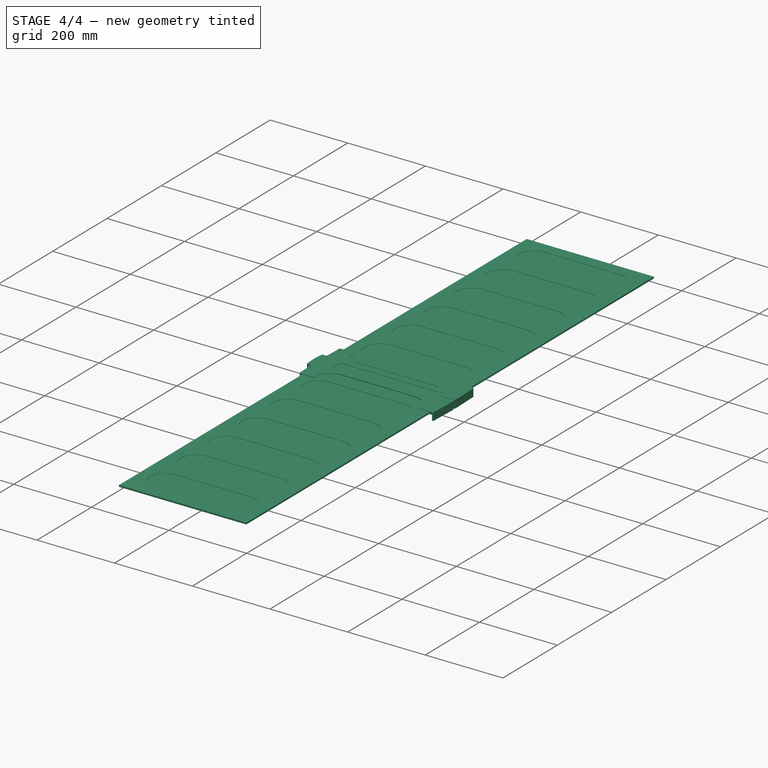
[diagram: stage 4 of 4 — iso view after this stage's code; geometry added in this stage tinted green]
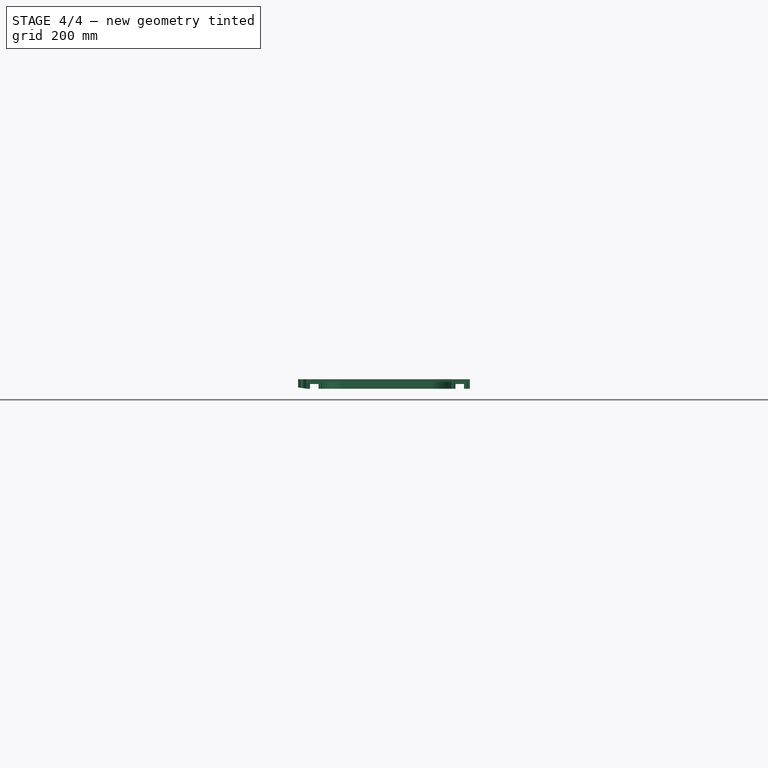
[diagram: stage 4 of 4 — front view after this stage's code; geometry added in this stage tinted green]
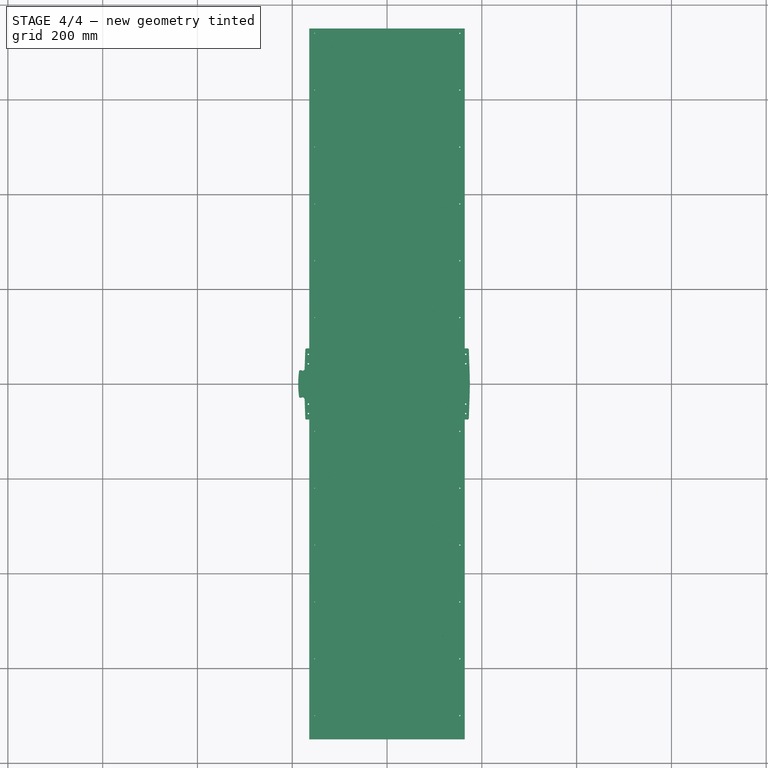
[diagram: stage 4 of 4 — top view after this stage's code; geometry added in this stage tinted green]
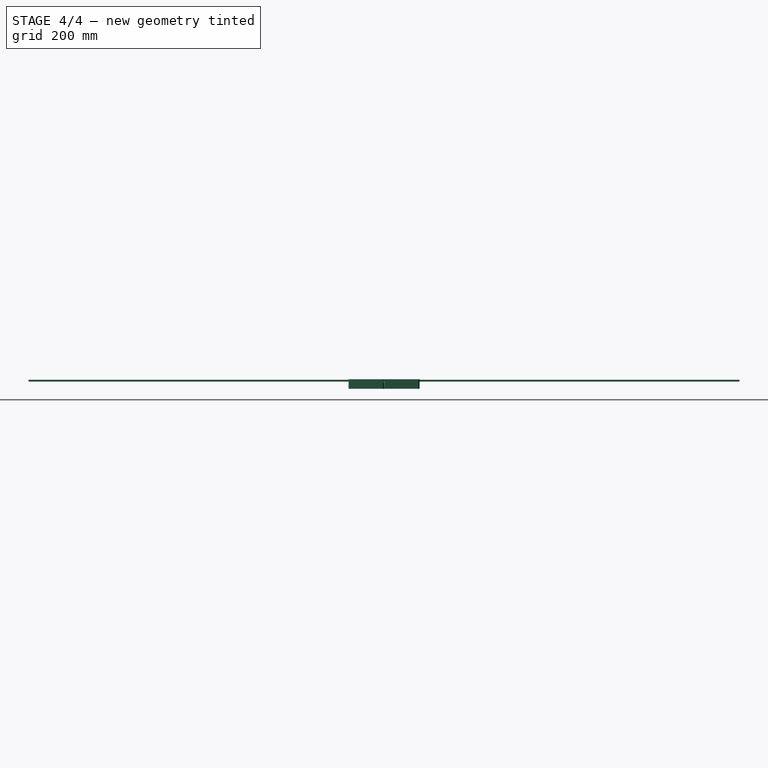
[diagram: stage 4 of 4 — right view after this stage's code; geometry added in this stage tinted green]
FEATURE [Sketcher::SketchObject] Sketch002
  ArcFitTolerance = 1e-06
  AttachmentSupport = -> [XY_Plane005]
  FullyConstrained = true
  MakeInternals = false
  MapMode = 5
  sketch-geometry (17):
    g0: Circle CenterX=-151.5 CenterY=-700 CenterZ=0 NormalX=0 NormalY=0 NormalZ=1 AngleXU=0 Radius=1.75
    g1: Circle CenterX=-151.5 CenterY=-580 CenterZ=0 NormalX=0 NormalY=0 NormalZ=1 AngleXU=0 Radius=1.75
    g2: Circle CenterX=-151.5 CenterY=-460 CenterZ=0 NormalX=0 NormalY=0 NormalZ=1 AngleXU=0 Radius=1.75
    g3: Circle CenterX=-151.5 CenterY=-340 CenterZ=0 NormalX=0 NormalY=0 NormalZ=1 AngleXU=0 Radius=1.75
    g4: Circle CenterX=-151.5 CenterY=-220 CenterZ=0 NormalX=0 NormalY=0 NormalZ=1 AngleXU=0 Radius=1.75
    g5: Circle CenterX=-151.5 CenterY=-100 CenterZ=0 NormalX=0 NormalY=0 NormalZ=1 AngleXU=0 Radius=1.75
    g6: Circle CenterX=-151.5 CenterY=20 CenterZ=0 NormalX=0 NormalY=0 NormalZ=1 AngleXU=0 Radius=1.75
    g7: Circle CenterX=-151.5 CenterY=140 CenterZ=0 NormalX=0 NormalY=0 NormalZ=1 AngleXU=0 Radius=1.75
    g8: Circle CenterX=-151.5 CenterY=260 CenterZ=0 NormalX=0 NormalY=0 NormalZ=1 AngleXU=0 Radius=1.75
    g9: Circle CenterX=-151.5 CenterY=380 CenterZ=0 NormalX=0 NormalY=0 NormalZ=1 AngleXU=0 Radius=1.75
    g10: Circle CenterX=-151.5 CenterY=500 CenterZ=0 NormalX=0 NormalY=0 NormalZ=1 AngleXU=0 Radius=1.75
    g11: Circle CenterX=-151.5 CenterY=620 CenterZ=0 NormalX=0 NormalY=0 NormalZ=1 AngleXU=0 Radius=1.75
    g12: Circle CenterX=-151.5 CenterY=740 CenterZ=0 NormalX=0 NormalY=0 NormalZ=1 AngleXU=0 Radius=1.75
    g13: LineSegment StartX=-162 StartY=750 StartZ=0 EndX=-147 EndY=750 EndZ=0
    g14: LineSegment StartX=-147 StartY=750 StartZ=0 EndX=-147 EndY=-750 EndZ=0
    g15: LineSegment StartX=-162 StartY=-750 StartZ=0 EndX=-147 EndY=-750 EndZ=0
    g16: LineSegment StartX=-162 StartY=-750 StartZ=0 EndX=-162 EndY=750 EndZ=0
  constraints (37):
    c: Distance(g15,g13) = 1500
    c: Diameter(g0) = 3.5
    c: Diameter(g1) = 3.5
    c: Diameter(g2) = 3.5
    c: Diameter(g3) = 3.5
    c: Diameter(g4) = 3.5
    c: Diameter(g5) = 3.5
    c: Diameter(g6) = 3.5
    c: Diameter(g7) = 3.5
    c: Diameter(g8) = 3.5
    c: Diameter(g9) = 3.5
    c: Diameter(g10) = 3.5
    c: Diameter(g11) = 3.5
    c: Diameter(g12) = 3.5
    c: Block(g0)
    c: Block(g1)
    c: Block(g2)
    c: Block(g3)
    c: Block(g4)
    c: Block(g5)
    c: Block(g6)
    c: Block(g7)
    c: Block(g8)
    c: Block(g9)
    c: Block(g10)
    c: Block(g11)
    c: Block(g12)
    c: Horizontal(g13)
    c: Coincident(g14,g13)
    c: Coincident(g15,g14)
    c: Horizontal(g15)
    c: DistanceX(g15,g-1) = 162
    c: DistanceX(g13,g13) = 15
    c: Symmetric(g13,g14,g-1)
    c: Coincident(g13,g16)
    c: Coincident(g16,g15)
    c: Vertical(g16)
FEATURE [PartDesign::Pad] Pad001
  Direction = (0,0,1)
  Length = 4
  Length2 = 10
  Profile = -> Sketch002
  ReferenceAxis = -> Sketch002 [N_Axis]
  Refine = true
  Suppressed = false
  Type = 0
FEATURE [PartDesign::Body] Body002  label="Entretoise"
  AllowCompound = false
  Group = -> [Sketch002,Pad001]
  Origin = -> Origin005
  Placement = pos=(-2,0,-21) rot=(0,0,1;0rad)
  Tip = -> Pad001
FEATURE [PartDesign::FeatureBase] Clone
  BaseFeature = -> Body002
  Suppressed = false
FEATURE [PartDesign::Body] Body003  label="Entretoise2"
  AllowCompound = false
  Group = -> [Clone]
  Origin = -> Origin006
  Placement = pos=(2,-1.7e-15,-17) rot=(0,-1,0;3.14159rad)
  Tip = -> Clone
FEATURE [PartDesign::Pad] Pad002
  Direction = (0,0,1)
  Length = 3
  Length2 = 10
  Profile = -> Sketch
  ReferenceAxis = -> Sketch [N_Axis]
  Refine = true
  Suppressed = false
  Type = 0
FEATURE [PartDesign::Body] Body  label="Partition"
  AllowCompound = false
  Group = -> [Sketch,Pad002]
  Origin = -> Origin003
  Placement = pos=(0,0,-20.5) rot=(0,0,1;0rad)
  Tip = -> Pad002
FEATURE [Sketcher::SketchObject] Sketch003
  ArcFitTolerance = 1e-06
  AttachmentSupport = -> [XY_Plane004]
  FullyConstrained = false
  MakeInternals = false
  MapMode = 5
  sketch-geometry (52):
    g0: ArcOfCircle CenterX=-95 CenterY=-5.2e-15 CenterZ=0 NormalX=0 NormalY=0 NormalZ=1 AngleXU=0 Radius=40 StartAngle=1.5708 EndAngle=4.71239
    g1: ArcOfCircle CenterX=95 CenterY=-5.2e-15 CenterZ=0 NormalX=0 NormalY=0 NormalZ=1 AngleXU=0 Radius=40 StartAngle=4.71239 EndAngle=7.85398
    g2: LineSegment StartX=-95 StartY=40 StartZ=0 EndX=95 EndY=40 EndZ=0
    g3: LineSegment StartX=-95 StartY=-40 StartZ=0 EndX=95 EndY=-40 EndZ=0
    g4: ArcOfCircle CenterX=-95 CenterY=113 CenterZ=0 NormalX=0 NormalY=0 NormalZ=1 AngleXU=0 Radius=40 StartAngle=1.5708 EndAngle=4.71239
    g5: ArcOfCircle CenterX=95 CenterY=113 CenterZ=0 NormalX=0 NormalY=0 NormalZ=1 AngleXU=0 Radius=40 StartAngle=4.71239 EndAngle=7.85398
    g6: LineSegment StartX=-95 StartY=153 StartZ=0 EndX=95 EndY=153 EndZ=0
    g7: LineSegment StartX=-95 StartY=73 StartZ=0 EndX=95 EndY=73 EndZ=0
    g8: ArcOfCircle CenterX=-95 CenterY=226 CenterZ=0 NormalX=0 NormalY=0 NormalZ=1 AngleXU=0 Radius=40 StartAngle=1.5708 EndAngle=4.71239
    g9: ArcOfCircle CenterX=95 CenterY=226 CenterZ=0 NormalX=0 NormalY=0 NormalZ=1 AngleXU=0 Radius=40 StartAngle=4.71239 EndAngle=7.85398
    g10: LineSegment StartX=-95 StartY=266 StartZ=0 EndX=95 EndY=266 EndZ=0
    g11: LineSegment StartX=-95 StartY=186 StartZ=0 EndX=95 EndY=186 EndZ=0
    g12: ArcOfCircle CenterX=-95 CenterY=339 CenterZ=0 NormalX=0 NormalY=0 NormalZ=1 AngleXU=0 Radius=40 StartAngle=1.5708 EndAngle=4.71239
    g13: ArcOfCircle CenterX=95 CenterY=339 CenterZ=0 NormalX=0 NormalY=0 NormalZ=1 AngleXU=0 Radius=40 StartAngle=4.71239 EndAngle=7.85398
    g14: LineSegment StartX=-95 StartY=379 StartZ=0 EndX=95 EndY=379 EndZ=0
    g15: LineSegment StartX=-95 StartY=299 StartZ=0 EndX=95 EndY=299 EndZ=0
    g16: ArcOfCircle CenterX=-95 CenterY=452 CenterZ=0 NormalX=0 NormalY=0 NormalZ=1 AngleXU=0 Radius=40 StartAngle=1.5708 EndAngle=4.71239
    g17: ArcOfCircle CenterX=95 CenterY=452 CenterZ=0 NormalX=0 NormalY=0 NormalZ=1 AngleXU=0 Radius=40 StartAngle=4.71239 EndAngle=7.85398
    g18: LineSegment StartX=-95 StartY=492 StartZ=0 EndX=95 EndY=492 EndZ=0
    g19: LineSegment StartX=-95 StartY=412 StartZ=0 EndX=95 EndY=412 EndZ=0
    g20: ArcOfCircle CenterX=-95 CenterY=565 CenterZ=0 NormalX=0 NormalY=0 NormalZ=1 AngleXU=0 Radius=40 StartAngle=1.5708 EndAngle=4.71239
    g21: ArcOfCircle CenterX=95 CenterY=565 CenterZ=0 NormalX=0 NormalY=0 NormalZ=1 AngleXU=0 Radius=40 StartAngle=4.71239 EndAngle=7.85398
    g22: LineSegment StartX=-95 StartY=605 StartZ=0 EndX=95 EndY=605 EndZ=0
    g23: LineSegment StartX=-95 StartY=525 StartZ=0 EndX=95 EndY=525 EndZ=0
    g24: ArcOfCircle CenterX=-95 CenterY=678 CenterZ=0 NormalX=0 NormalY=0 NormalZ=1 AngleXU=0 Radius=40 StartAngle=1.5708 EndAngle=4.71239
    g25: ArcOfCircle CenterX=95 CenterY=678 CenterZ=0 NormalX=0 NormalY=0 NormalZ=1 AngleXU=0 Radius=40 StartAngle=4.71239 EndAngle=7.85398
    g26: LineSegment StartX=-95 StartY=718 StartZ=0 EndX=95 EndY=718 EndZ=0
    g27: LineSegment StartX=-95 StartY=638 StartZ=0 EndX=95 EndY=638 EndZ=0
    g28: ArcOfCircle CenterX=-95 CenterY=-113 CenterZ=0 NormalX=0 NormalY=0 NormalZ=1 AngleXU=0 Radius=40 StartAngle=1.5708 EndAngle=4.71239
    g29: ArcOfCircle CenterX=95 CenterY=-113 CenterZ=0 NormalX=0 NormalY=0 NormalZ=1 AngleXU=0 Radius=40 StartAngle=4.71239 EndAngle=7.85398
    g30: LineSegment StartX=-95 StartY=-153 StartZ=0 EndX=95 EndY=-153 EndZ=0
    g31: LineSegment StartX=-95 StartY=-73 StartZ=0 EndX=95 EndY=-73 EndZ=0
    g32: ArcOfCircle CenterX=-95 CenterY=-226 CenterZ=0 NormalX=0 NormalY=0 NormalZ=1 AngleXU=0 Radius=40 StartAngle=1.5708 EndAngle=4.71239
    g33: ArcOfCircle CenterX=95 CenterY=-226 CenterZ=0 NormalX=0 NormalY=0 NormalZ=1 AngleXU=0 Radius=40 StartAngle=4.71239 EndAngle=7.85398
    g34: LineSegment StartX=-95 StartY=-266 StartZ=0 EndX=95 EndY=-266 EndZ=0
    g35: LineSegment StartX=-95 StartY=-186 StartZ=0 EndX=95 EndY=-186 EndZ=0
    g36: ArcOfCircle CenterX=-95 CenterY=-339 CenterZ=0 NormalX=0 NormalY=0 NormalZ=1 AngleXU=0 Radius=40 StartAngle=1.5708 EndAngle=4.71239
    g37: ArcOfCircle CenterX=95 CenterY=-339 CenterZ=0 NormalX=0 NormalY=0 NormalZ=1 AngleXU=0 Radius=40 StartAngle=4.71239 EndAngle=7.85398
    g38: LineSegment StartX=-95 StartY=-379 StartZ=0 EndX=95 EndY=-379 EndZ=0
    g39: LineSegment StartX=-95 StartY=-299 StartZ=0 EndX=95 EndY=-299 EndZ=0
    g40: ArcOfCircle CenterX=-95 CenterY=-452 CenterZ=0 NormalX=0 NormalY=0 NormalZ=1 AngleXU=0 Radius=40 StartAngle=1.5708 EndAngle=4.71239
    g41: ArcOfCircle CenterX=95 CenterY=-452 CenterZ=0 NormalX=0 NormalY=0 NormalZ=1 AngleXU=0 Radius=40 StartAngle=4.71239 EndAngle=7.85398
    g42: LineSegment StartX=-95 StartY=-492 StartZ=0 EndX=95 EndY=-492 EndZ=0
    g43: LineSegment StartX=-95 StartY=-412 StartZ=0 EndX=95 EndY=-412 EndZ=0
    g44: ArcOfCircle CenterX=-95 CenterY=-565 CenterZ=0 NormalX=0 NormalY=0 NormalZ=1 AngleXU=0 Radius=40 StartAngle=1.5708 EndAngle=4.71239
    g45: ArcOfCircle CenterX=95 CenterY=-565 CenterZ=0 NormalX=0 NormalY=0 NormalZ=1 AngleXU=0 Radius=40 StartAngle=4.71239 EndAngle=7.85398
    g46: LineSegment StartX=-95 StartY=-605 StartZ=0 EndX=95 EndY=-605 EndZ=0
    g47: LineSegment StartX=-95 StartY=-525 StartZ=0 EndX=95 EndY=-525 EndZ=0
    g48: ArcOfCircle CenterX=-95 CenterY=-678 CenterZ=0 NormalX=0 NormalY=0 NormalZ=1 AngleXU=0 Radius=40 StartAngle=1.5708 EndAngle=4.71239
    g49: ArcOfCircle CenterX=95 CenterY=-678 CenterZ=0 NormalX=0 NormalY=0 NormalZ=1 AngleXU=0 Radius=40 StartAngle=4.71239 EndAngle=7.85398
    g50: LineSegment StartX=-95 StartY=-718 StartZ=0 EndX=95 EndY=-718 EndZ=0
    g51: LineSegment StartX=-95 StartY=-638 StartZ=0 EndX=95 EndY=-638 EndZ=0
  constraints (87):
    c: Tangent(g0,g2) = 1.5708
    c: Tangent(g0,g3) = -1.5708
    c: Tangent(g1,g2) = 1.5708
    c: Tangent(g1,g3) = -1.5708
    c: Equal(g0,g1)
    c: Symmetric(g1,g0,g-2)
    c: Symmetric(g1,g1,g-1)
    c: Radius(g1) = 40
    c: DistanceX(g2,g2) = 190
    c: Tangent(g4,g6) = 1.5708
    c: Tangent(g8,g10) = 1.5708
    c: Tangent(g12,g14) = 1.5708
    c: Tangent(g16,g18) = 1.5708
    c: Tangent(g20,g22) = 1.5708
    c: Tangent(g24,g26) = 1.5708
    c: Tangent(g4,g7) = -1.5708
    c: Tangent(g8,g11) = -1.5708
    c: Tangent(g12,g15) = -1.5708
    c: Tangent(g16,g19) = -1.5708
    c: Tangent(g20,g23) = -1.5708
    c: Tangent(g24,g27) = -1.5708
    c: Tangent(g5,g6) = 1.5708
    c: Tangent(g9,g10) = 1.5708
    c: Tangent(g13,g14) = 1.5708
    c: Tangent(g17,g18) = 1.5708
    c: Tangent(g21,g22) = 1.5708
    c: Tangent(g25,g26) = 1.5708
    c: Tangent(g5,g7) = -1.5708
    c: Tangent(g9,g11) = -1.5708
    c: Tangent(g13,g15) = -1.5708
    c: Tangent(g17,g19) = -1.5708
    c: Tangent(g21,g23) = -1.5708
    c: Tangent(g25,g27) = -1.5708
    c: Equal(g4,g5)
    c: Equal(g8,g9)
    c: Equal(g12,g13)
    c: Equal(g16,g17)
    c: Equal(g20,g21)
    c: Equal(g24,g25)
    c: Radius(g5) = 40
    c: Radius(g9) = 40
    c: Radius(g13) = 40
    c: Radius(g17) = 40
    c: Radius(g21) = 40
    c: Radius(g25) = 40
    c: DistanceX(g6,g6) = 190
    c: DistanceX(g10,g10) = 190
    c: DistanceX(g14,g14) = 190
    c: DistanceX(g18,g18) = 190
    c: DistanceX(g22,g22) = 190
    c: DistanceX(g26,g26) = 190
    c: Tangent(g28,g30) = -1.5708
    c: Tangent(g32,g34) = -1.5708
    c: Tangent(g36,g38) = -1.5708
    c: Tangent(g40,g42) = -1.5708
    c: Tangent(g44,g46) = -1.5708
    c: Tangent(g48,g50) = -1.5708
    c: Tangent(g28,g31) = 1.5708
    c: Tangent(g32,g35) = 1.5708
    c: Tangent(g36,g39) = 1.5708
    c: Tangent(g40,g43) = 1.5708
    c: Tangent(g44,g47) = 1.5708
    c: Tangent(g48,g51) = 1.5708
    c: Tangent(g29,g30) = -1.5708
    c: Tangent(g33,g34) = -1.5708
    c: Tangent(g37,g38) = -1.5708
    c: Tangent(g41,g42) = -1.5708
    c: Tangent(g45,g46) = -1.5708
    c: Tangent(g49,g50) = -1.5708
    c: Tangent(g29,g31) = 1.5708
    c: Tangent(g33,g35) = 1.5708
    c: Tangent(g37,g39) = 1.5708
    c: Tangent(g41,g43) = 1.5708
    c: Tangent(g45,g47) = 1.5708
    c: Tangent(g49,g51) = 1.5708
    c: Equal(g28,g29)
    c: Equal(g32,g33)
    c: Equal(g36,g37)
    c: Equal(g40,g41)
    c: Equal(g44,g45)
    c: Equal(g48,g49)
    c: Radius(g29) = 40
    c: Radius(g33) = 40
    c: Radius(g37) = 40
    c: Radius(g41) = 40
    c: Radius(g45) = 40
    c: Radius(g49) = 40
FEATURE [PartDesign::Pocket] Pocket
  BaseFeature = -> Pad
  Direction = (0,0,-1)
  Length = 5
  Length2 = 5
  Profile = -> Sketch003
  ReferenceAxis = -> Sketch003 [N_Axis]
  Refine = true
  Reversed = true
  Suppressed = false
  Type = 1
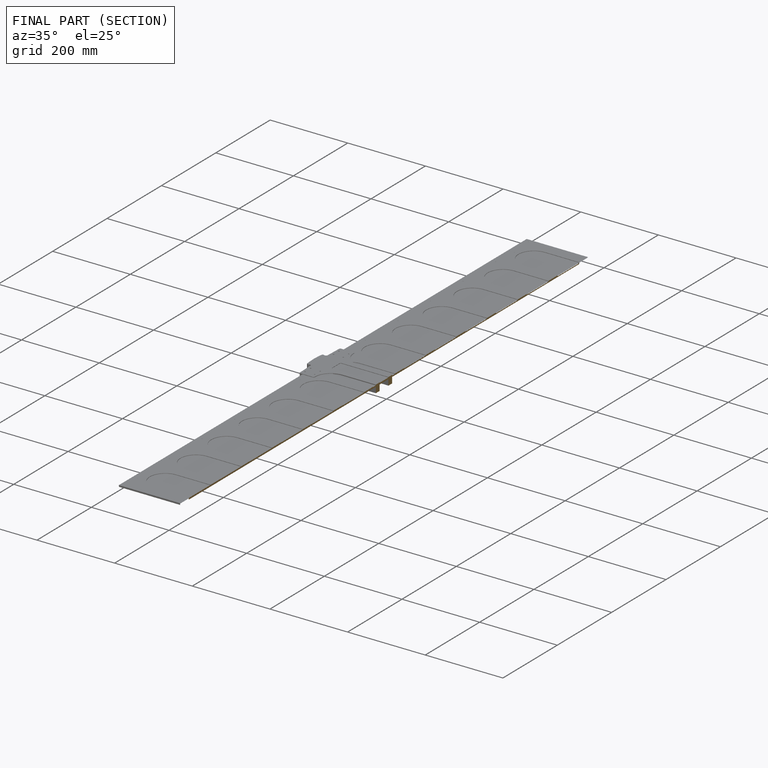
[diagram: finished part — half-section view (interior)]
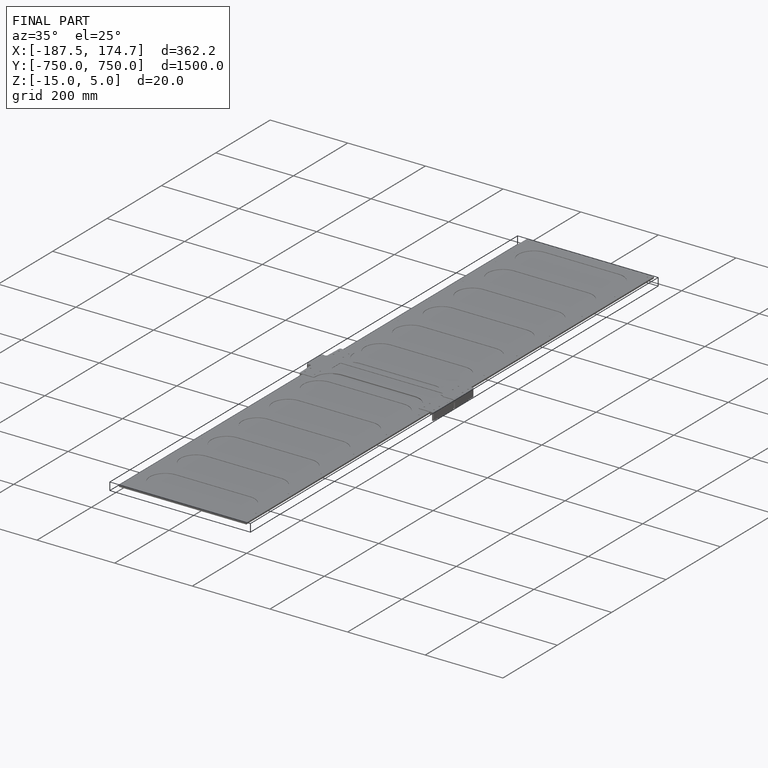
[diagram: finished part — iso view with bounding-box wireframe]
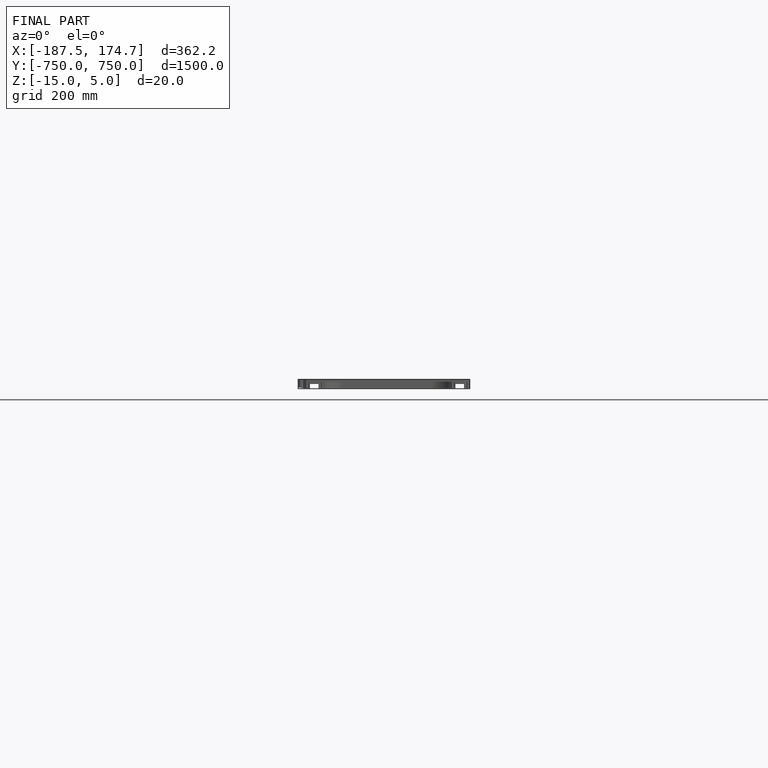
[diagram: finished part — front view with bounding-box wireframe]
